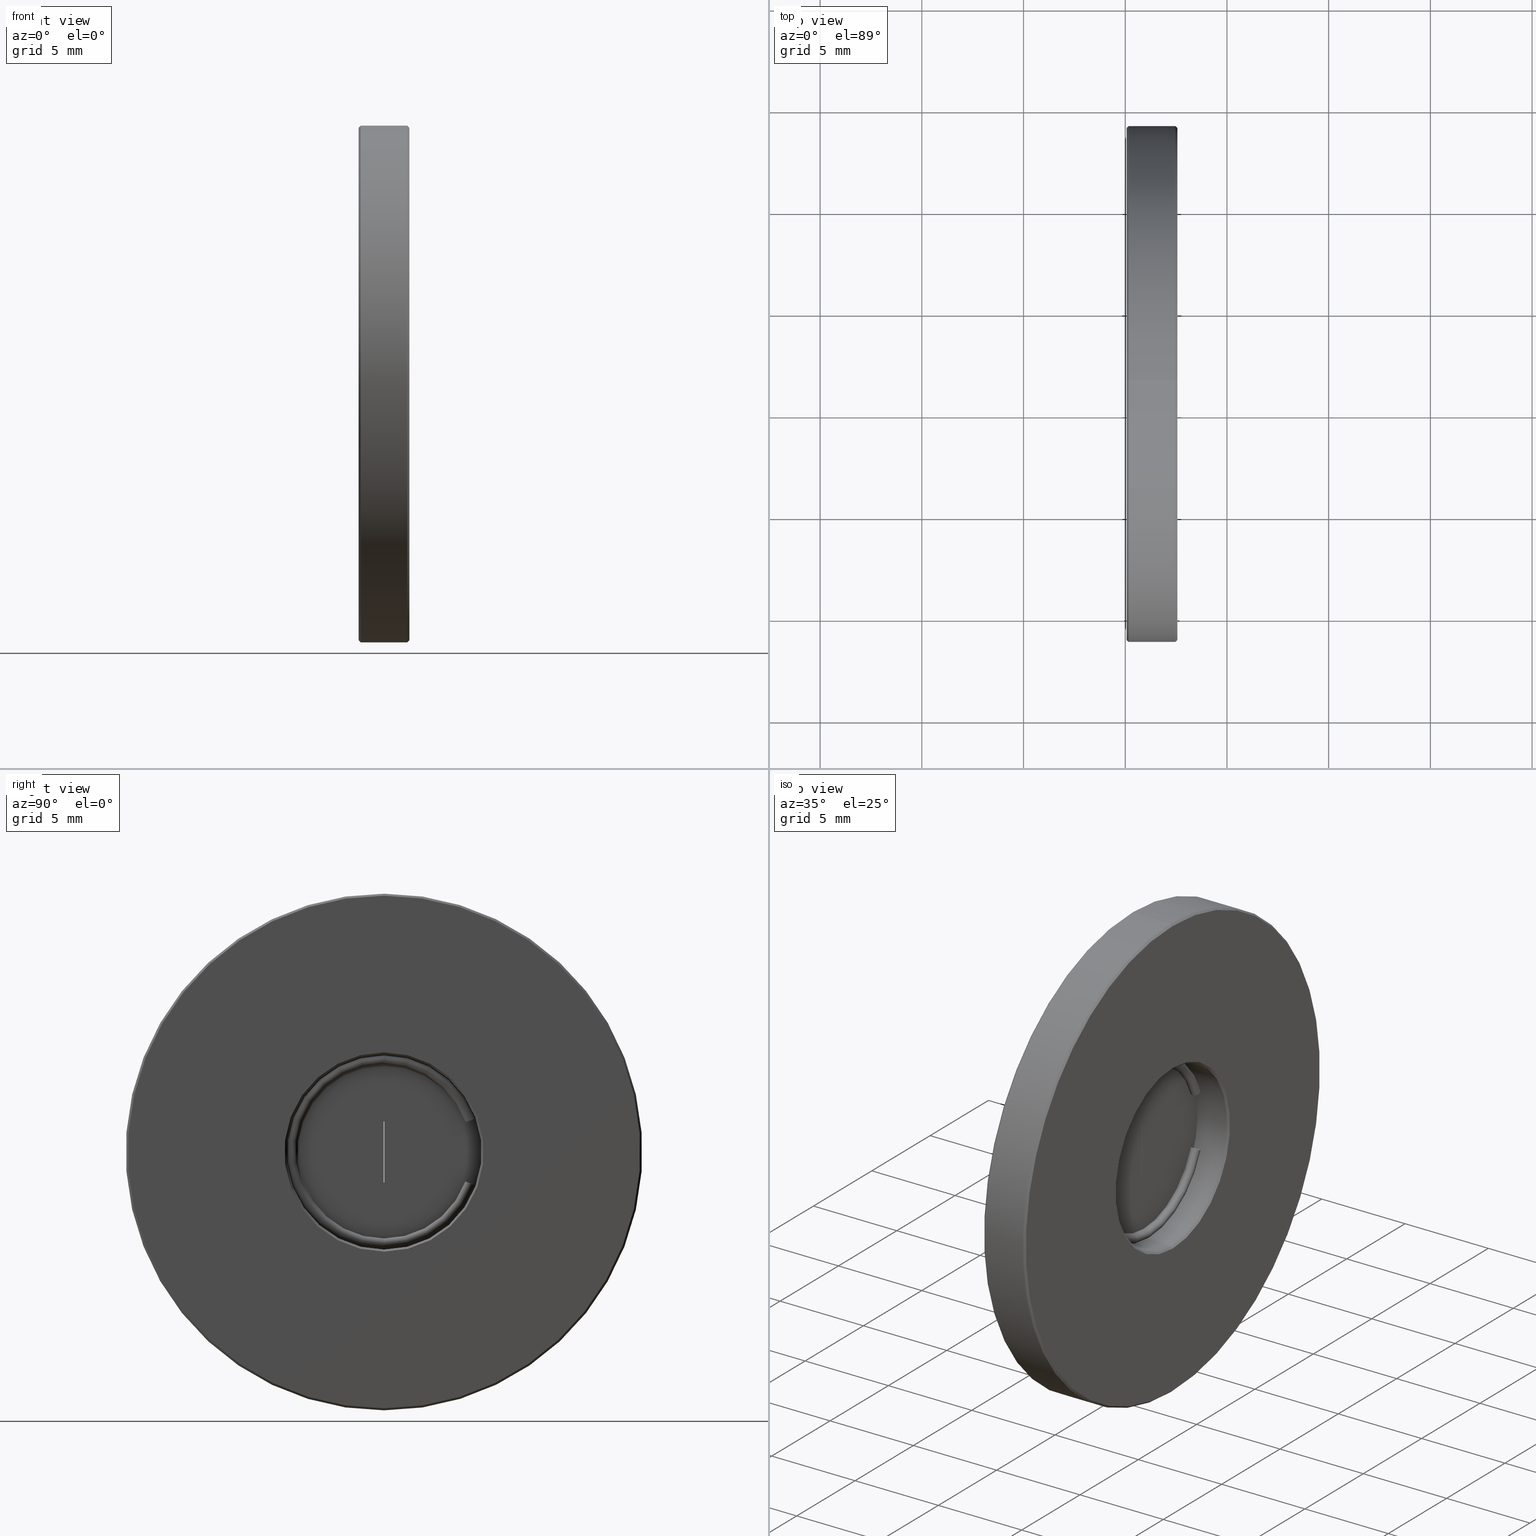
[diagram: canonical four-view strip — front | top / right | iso, engineering-drawing reading convention]
A machine part, canonical four-view strip (front | top / right | iso — engineering-drawing reading convention). The complete STEP part file that produces these views, byte-faithful:
ISO-10303-21;
HEADER;
FILE_DESCRIPTION (( 'STEP AP203' ),
    '1' );
FILE_NAME ('528056.STEP',
    '2023-04-06T08:12:36',
    ( '1337953205@qq.com' ),
    ( '' ),
    'SwSTEP 2.0',
    'SolidWorks 2020',
    '' );
FILE_SCHEMA (( 'CONFIG_CONTROL_DESIGN' ));
ENDSEC;

DATA;
#1 = EDGE_CURVE ( 'NONE', #247, #933, #180, .T. ) ;
#2 = ORIENTED_EDGE ( 'NONE', *, *, #721, .T. ) ;
#3 = ORIENTED_EDGE ( 'NONE', *, *, #604, .T. ) ;
#4 = DIRECTION ( 'NONE',  ( 0.000000000000000000, 0.000000000000000000, -1.000000000000000000 ) ) ;
#5 = DIRECTION ( 'NONE',  ( 3.053113317638805026E-15, 1.000000000000000000, -6.581520653068446578E-11 ) ) ;
#6 = ORIENTED_EDGE ( 'NONE', *, *, #466, .F. ) ;
#7 = DIRECTION ( 'NONE',  ( 1.000000000000000000, 0.000000000000000000, 0.000000000000000000 ) ) ;
#8 = PERSON ( 'δָ��', 'δָ��', 'δָ��', ('δָ��'), ('δָ��'), ('δָ��') ) ;
#9 = DIRECTION ( 'NONE',  ( 0.000000000000000000, 0.000000000000000000, -1.000000000000000000 ) ) ;
#10 = LINE ( 'NONE', #752, #308 ) ;
#11 = CLOSED_SHELL ( 'NONE', ( #220, #214, #435, #58, #460, #622, #64, #884, #144, #823, #866, #584, #171, #537, #527, #666, #551, #632, #916, #354, #47, #921, #393, #372, #557 ) ) ;
#12 = ORIENTED_EDGE ( 'NONE', *, *, #792, .T. ) ;
#13 = FACE_OUTER_BOUND ( 'NONE', #139, .T. ) ;
#14 = EDGE_CURVE ( 'NONE', #619, #373, #75, .T. ) ;
#15 = AXIS2_PLACEMENT_3D ( 'NONE', #702, #183, #931 ) ;
#16 = FACE_OUTER_BOUND ( 'NONE', #185, .T. ) ;
#17 = CC_DESIGN_APPROVAL ( #805, ( #184 ) ) ;
#18 = CYLINDRICAL_SURFACE ( 'NONE', #907, 3.700000000000001954 ) ;
#19 = ORIENTED_EDGE ( 'NONE', *, *, #152, .F. ) ;
#20 = DIRECTION ( 'NONE',  ( 0.000000000000000000, -1.000000000000000000, 0.000000000000000000 ) ) ;
#21 = CARTESIAN_POINT ( 'NONE',  ( -4.934863851252999645, 1.436758841085000071, 25.39999999999999858 ) ) ;
#22 = EDGE_CURVE ( 'NONE', #480, #477, #10, .T. ) ;
#23 = CARTESIAN_POINT ( 'NONE',  ( -2.434863851252999645, 1.436758841085000071, 25.39999999999999858 ) ) ;
#24 = ORIENTED_EDGE ( 'NONE', *, *, #152, .T. ) ;
#25 = DIRECTION ( 'NONE',  ( 0.000000000000000000, -1.000000000000000000, 0.000000000000000000 ) ) ;
#26 = FACE_BOUND ( 'NONE', #870, .T. ) ;
#27 = EDGE_CURVE ( 'NONE', #81, #665, #789, .T. ) ;
#28 = DIRECTION ( 'NONE',  ( 3.104242009642707308E-15, 1.000000000000000000, -6.581577388350236595E-11 ) ) ;
#29 = EDGE_LOOP ( 'NONE', ( #575, #174, #3, #529 ) ) ;
#30 = DIRECTION ( 'NONE',  ( 1.000000000000000000, 0.000000000000000000, 0.000000000000000000 ) ) ;
#31 = CARTESIAN_POINT ( 'NONE',  ( -4.284863851253000178, 1.436758841085000071, 25.39999999999999858 ) ) ;
#32 = AXIS2_PLACEMENT_3D ( 'NONE', #61, #350, #561 ) ;
#33 = VECTOR ( 'NONE', #618, 1000.000000000000114 ) ;
#34 = VECTOR ( 'NONE', #312, 999.9999999999998863 ) ;
#35 = AXIS2_PLACEMENT_3D ( 'NONE', #533, #600, #734 ) ;
#36 = CARTESIAN_POINT ( 'NONE',  ( -2.434863851252999645, 1.436758841085000071, 25.39999999999999858 ) ) ;
#37 = EDGE_CURVE ( 'NONE', #412, #753, #834, .T. ) ;
#38 = VERTEX_POINT ( 'NONE', #520 ) ;
#39 = CALENDAR_DATE ( 2023, 6, 4 ) ;
#40 = DIRECTION ( 'NONE',  ( 0.000000000000000000, 0.000000000000000000, -1.000000000000000000 ) ) ;
#41 = ORIENTED_EDGE ( 'NONE', *, *, #401, .T. ) ;
#42 = DIRECTION ( 'NONE',  ( 0.000000000000000000, 0.000000000000000000, 1.000000000000000000 ) ) ;
#43 = CARTESIAN_POINT ( 'NONE',  ( -2.434863851252999645, 1.436758841085000737, 30.30000000000000071 ) ) ;
#44 = ORIENTED_EDGE ( 'NONE', *, *, #729, .T. ) ;
#45 = COORDINATED_UNIVERSAL_TIME_OFFSET ( 8, 0, .AHEAD. ) ;
#46 = LINE ( 'NONE', #341, #613 ) ;
#47 = ADVANCED_FACE ( 'NONE', ( #539 ), #88, .T. ) ;
#48 = CONICAL_SURFACE ( 'NONE', #818, 4.900000000000001243, 0.7853981633974433940 ) ;
#49 = AXIS2_PLACEMENT_3D ( 'NONE', #175, #98, #455 ) ;
#50 = APPROVAL_PERSON_ORGANIZATION ( #335, #227, #252 ) ;
#51 = EDGE_LOOP ( 'NONE', ( #203, #643 ) ) ;
#52 = FACE_OUTER_BOUND ( 'NONE', #473, .T. ) ;
#53 = CARTESIAN_POINT ( 'NONE',  ( -4.334863851253000000, 1.436758841085000071, 25.39999999999999858 ) ) ;
#54 = CC_DESIGN_DATE_AND_TIME_ASSIGNMENT ( #407, #779, ( #184 ) ) ;
#55 = EDGE_LOOP ( 'NONE', ( #44, #793 ) ) ;
#56 = CARTESIAN_POINT ( 'NONE',  ( -4.034863851253000178, 1.436758841085000071, 25.39999999999999858 ) ) ;
#57 = DIRECTION ( 'NONE',  ( -1.000000000000000000, 0.000000000000000000, 0.000000000000000000 ) ) ;
#58 = ADVANCED_FACE ( 'NONE', ( #173 ), #384, .F. ) ;
#59 = ORIENTED_EDGE ( 'NONE', *, *, #746, .F. ) ;
#60 = DIRECTION ( 'NONE',  ( 0.000000000000000000, 0.000000000000000000, -1.000000000000000000 ) ) ;
#61 = CARTESIAN_POINT ( 'NONE',  ( -4.034863851253000178, 1.436758841085000071, 25.39999999999999858 ) ) ;
#62 = AXIS2_PLACEMENT_3D ( 'NONE', #849, #405, #645 ) ;
#63 = ORIENTED_EDGE ( 'NONE', *, *, #757, .T. ) ;
#64 = ADVANCED_FACE ( 'NONE', ( #463, #885 ), #815, .F. ) ;
#65 = DIRECTION ( 'NONE',  ( 1.000000000000000000, -3.053113317719177725E-15, -1.221245326846538123E-15 ) ) ;
#66 = CARTESIAN_POINT ( 'NONE',  ( -4.034863851253000178, 1.436758841085000071, 25.39999999999999858 ) ) ;
#67 = ORIENTED_EDGE ( 'NONE', *, *, #430, .F. ) ;
#68 = ORIENTED_EDGE ( 'NONE', *, *, #935, .T. ) ;
#69 = PLANE ( 'NONE',  #846 ) ;
#70 = CARTESIAN_POINT ( 'NONE',  ( -4.284863851253000178, 1.436758841085000071, 25.39999999999999858 ) ) ;
#71 = ORIENTED_EDGE ( 'NONE', *, *, #859, .T. ) ;
#72 = PLANE ( 'NONE',  #134 ) ;
#73 = CARTESIAN_POINT ( 'NONE',  ( -4.334863851253000000, 1.421758841084999947, 23.89999999999999858 ) ) ;
#74 = EDGE_CURVE ( 'NONE', #714, #585, #489, .T. ) ;
#75 = LINE ( 'NONE', #571, #242 ) ;
#76 = AXIS2_PLACEMENT_3D ( 'NONE', #70, #212, #83 ) ;
#77 = ORIENTED_EDGE ( 'NONE', *, *, #85, .T. ) ;
#78 = FACE_OUTER_BOUND ( 'NONE', #563, .T. ) ;
#79 = CARTESIAN_POINT ( 'NONE',  ( -18.51131405003469865, 1.436758841085000737, 30.19999999999999929 ) ) ;
#80 = APPLICATION_CONTEXT ( 'configuration controlled 3d designs of mechanical parts and assemblies' ) ;
#81 = VERTEX_POINT ( 'NONE', #315 ) ;
#82 = CARTESIAN_POINT ( 'NONE',  ( -4.334863851253000000, 1.436758841085000071, 25.39999999999999858 ) ) ;
#83 = DIRECTION ( 'NONE',  ( 0.000000000000000000, 1.000000000000000000, 0.000000000000000000 ) ) ;
#84 = LINE ( 'NONE', #102, #135 ) ;
#85 = EDGE_CURVE ( 'NONE', #81, #353, #150, .T. ) ;
#86 = ORIENTED_EDGE ( 'NONE', *, *, #899, .F. ) ;
#87 = FACE_OUTER_BOUND ( 'NONE', #29, .T. ) ;
#88 = PLANE ( 'NONE',  #535 ) ;
#89 = ADVANCED_BREP_SHAPE_REPRESENTATION ( '528056', ( #562, #554, #820 ), #568 ) ;
#90 = AXIS2_PLACEMENT_3D ( 'NONE', #36, #201, #932 ) ;
#91 = VERTEX_POINT ( 'NONE', #821 ) ;
#92 = EDGE_CURVE ( 'NONE', #633, #619, #84, .T. ) ;
#93 = APPROVAL_DATE_TIME ( #328, #805 ) ;
#94 = AXIS2_PLACEMENT_3D ( 'NONE', #56, #573, #418 ) ;
#95 = DIRECTION ( 'NONE',  ( 1.000000000000000000, 0.000000000000000000, 0.000000000000000000 ) ) ;
#96 = VERTEX_POINT ( 'NONE', #228 ) ;
#97 = FACE_OUTER_BOUND ( 'NONE', #594, .T. ) ;
#98 = DIRECTION ( 'NONE',  ( -1.000000000000000000, 0.000000000000000000, 0.000000000000000000 ) ) ;
#99 = EDGE_CURVE ( 'NONE', #851, #412, #524, .T. ) ;
#100 = DIRECTION ( 'NONE',  ( 0.000000000000000000, 0.000000000000000000, -1.000000000000000000 ) ) ;
#101 = CARTESIAN_POINT ( 'NONE',  ( -2.434863851252999645, 1.436758841085000071, 25.39999999999999858 ) ) ;
#102 = CARTESIAN_POINT ( 'NONE',  ( -4.284863851253000178, 1.421758841084999947, 26.89999999999999858 ) ) ;
#103 = ORIENTED_EDGE ( 'NONE', *, *, #295, .F. ) ;
#104 = APPROVAL_STATUS ( 'not_yet_approved' ) ;
#105 = VECTOR ( 'NONE', #781, 999.9999999999998863 ) ;
#106 = AXIS2_PLACEMENT_3D ( 'NONE', #469, #30, #25 ) ;
#107 = ORIENTED_EDGE ( 'NONE', *, *, #74, .F. ) ;
#108 = FACE_OUTER_BOUND ( 'NONE', #258, .T. ) ;
#109 = ORIENTED_EDGE ( 'NONE', *, *, #676, .F. ) ;
#110 = ADVANCED_FACE ( 'NONE', ( #811 ), #545, .T. ) ;
#111 = LINE ( 'NONE', #497, #194 ) ;
#112 = ORIENTED_EDGE ( 'NONE', *, *, #74, .T. ) ;
#113 = APPROVAL_ROLE ( '' ) ;
#114 = EDGE_CURVE ( 'NONE', #588, #856, #243, .T. ) ;
#115 = DIRECTION ( 'NONE',  ( 1.000000000000000000, 0.000000000000000000, 0.000000000000000000 ) ) ;
#116 = TOROIDAL_SURFACE ( 'NONE', #32, 4.500000000000000000, 0.2500000000000000000 ) ;
#117 = DIRECTION ( 'NONE',  ( -1.000000000000000000, 0.000000000000000000, 0.000000000000000000 ) ) ;
#118 = CONICAL_SURFACE ( 'NONE', #787, 3.800000000000001155, 0.7853981633974433940 ) ;
#119 = ORIENTED_EDGE ( 'NONE', *, *, #596, .T. ) ;
#120 = CARTESIAN_POINT ( 'NONE',  ( -4.034863851252985967, 5.430452479520808673, 26.85358560887116042 ) ) ;
#121 = EDGE_CURVE ( 'NONE', #433, #801, #379, .T. ) ;
#122 = ORIENTED_EDGE ( 'NONE', *, *, #935, .F. ) ;
#123 = PERSON_AND_ORGANIZATION_ROLE ( 'creator' ) ;
#124 = DIRECTION ( 'NONE',  ( -1.000000000000000000, 0.000000000000000000, 0.000000000000000000 ) ) ;
#125 = DIRECTION ( 'NONE',  ( 0.000000000000000000, 0.000000000000000000, -1.000000000000000000 ) ) ;
#126 = VERTEX_POINT ( 'NONE', #232 ) ;
#127 = PERSON_AND_ORGANIZATION_ROLE ( 'classification_officer' ) ;
#128 = DIRECTION ( 'NONE',  ( -1.000000000000000000, 0.000000000000000000, 0.000000000000000000 ) ) ;
#129 = CARTESIAN_POINT ( 'NONE',  ( -4.284863851253000178, 6.186758841085000071, 25.39999999999999858 ) ) ;
#130 = AXIS2_PLACEMENT_3D ( 'NONE', #674, #677, #826 ) ;
#131 = AXIS2_PLACEMENT_3D ( 'NONE', #346, #920, #915 ) ;
#132 = AXIS2_PLACEMENT_3D ( 'NONE', #540, #689, #828 ) ;
#133 = ORIENTED_EDGE ( 'NONE', *, *, #314, .F. ) ;
#134 = AXIS2_PLACEMENT_3D ( 'NONE', #446, #595, #307 ) ;
#135 = VECTOR ( 'NONE', #100, 1000.000000000000000 ) ;
#136 = DIRECTION ( 'NONE',  ( 1.000000000000000000, 0.000000000000000000, 0.000000000000000000 ) ) ;
#137 = CARTESIAN_POINT ( 'NONE',  ( -4.834863851252999112, 1.436758841085000071, 25.39999999999999858 ) ) ;
#138 = ORIENTED_EDGE ( 'NONE', *, *, #494, .F. ) ;
#139 = EDGE_LOOP ( 'NONE', ( #291, #796, #109, #402 ) ) ;
#140 = DIRECTION ( 'NONE',  ( 1.000000000000000000, 7.239954656432090073E-27, 1.100029575852693904E-16 ) ) ;
#141 = CARTESIAN_POINT ( 'NONE',  ( -4.834863851252998224, 1.436758841085000071, 25.39999999999999858 ) ) ;
#142 = CARTESIAN_POINT ( 'NONE',  ( -4.034863851253000178, 1.436758841085000071, 25.39999999999999858 ) ) ;
#143 = LINE ( 'NONE', #292, #179 ) ;
#144 = ADVANCED_FACE ( 'NONE', ( #671 ), #18, .F. ) ;
#145 = CARTESIAN_POINT ( 'NONE',  ( -4.284863851253000178, 1.451758841084999974, 26.89999999999999858 ) ) ;
#146 = DESIGN_CONTEXT ( 'detailed design', #80, 'design' ) ;
#147 = VERTEX_POINT ( 'NONE', #593 ) ;
#148 = AXIS2_PLACEMENT_3D ( 'NONE', #156, #5, #451 ) ;
#149 = CC_DESIGN_SECURITY_CLASSIFICATION ( #324, ( #290 ) ) ;
#150 = CIRCLE ( 'NONE', #428, 4.750000000000000000 ) ;
#151 = DIRECTION ( 'NONE',  ( -1.221245327047478942E-15, -6.581508912423552347E-11, -1.000000000000000000 ) ) ;
#152 = EDGE_CURVE ( 'NONE', #585, #714, #425, .T. ) ;
#153 = LINE ( 'NONE', #457, #105 ) ;
#154 = ORIENTED_EDGE ( 'NONE', *, *, #733, .T. ) ;
#155 = CARTESIAN_POINT ( 'NONE',  ( -2.534863851253000178, 1.436758841085000071, 25.39999999999999858 ) ) ;
#156 = CARTESIAN_POINT ( 'NONE',  ( -4.034863851253005507, 1.436758841381168494, 29.89999999999999858 ) ) ;
#157 = EDGE_CURVE ( 'NONE', #433, #147, #153, .T. ) ;
#158 = CARTESIAN_POINT ( 'NONE',  ( -4.284863851253000178, 1.451758841084999974, 26.89999999999999858 ) ) ;
#159 = ORIENTED_EDGE ( 'NONE', *, *, #688, .T. ) ;
#160 = PLANE ( 'NONE',  #444 ) ;
#161 = PLANE ( 'NONE',  #877 ) ;
#162 = DIRECTION ( 'NONE',  ( 0.000000000000000000, 0.000000000000000000, -1.000000000000000000 ) ) ;
#163 = CONICAL_SURFACE ( 'NONE', #90, 12.59999999999999964, 0.7853981633974568277 ) ;
#164 =( NAMED_UNIT ( * ) SI_UNIT ( $, .STERADIAN. ) SOLID_ANGLE_UNIT ( ) );
#165 = CIRCLE ( 'NONE', #819, 3.800000000000001155 ) ;
#166 = CIRCLE ( 'NONE', #399, 4.799999999999998934 ) ;
#167 = FACE_OUTER_BOUND ( 'NONE', #730, .T. ) ;
#168 = DIRECTION ( 'NONE',  ( 0.000000000000000000, -1.000000000000000000, 0.000000000000000000 ) ) ;
#169 = ORIENTED_EDGE ( 'NONE', *, *, #441, .T. ) ;
#170 = APPLICATION_PROTOCOL_DEFINITION ( 'international standard', 'config_control_design', 1994, #80 ) ;
#171 = ADVANCED_FACE ( 'NONE', ( #627 ), #411, .F. ) ;
#172 = LINE ( 'NONE', #750, #33 ) ;
#173 = FACE_OUTER_BOUND ( 'NONE', #615, .T. ) ;
#174 = ORIENTED_EDGE ( 'NONE', *, *, #854, .T. ) ;
#175 = CARTESIAN_POINT ( 'NONE',  ( -4.934863851252999645, 1.436758841085000071, 25.39999999999999858 ) ) ;
#176 = ORIENTED_EDGE ( 'NONE', *, *, #829, .T. ) ;
#177 = CARTESIAN_POINT ( 'NONE',  ( -4.284863851253000178, 1.451758841084999974, 23.89999999999999858 ) ) ;
#178 = VECTOR ( 'NONE', #222, 1000.000000000000000 ) ;
#179 = VECTOR ( 'NONE', #7, 1000.000000000000000 ) ;
#180 = CIRCLE ( 'NONE', #712, 4.250000000000000000 ) ;
#181 = EDGE_CURVE ( 'NONE', #91, #546, #503, .T. ) ;
#182 = VERTEX_POINT ( 'NONE', #774 ) ;
#183 = DIRECTION ( 'NONE',  ( 1.000000000000000000, 0.000000000000000000, 0.000000000000000000 ) ) ;
#184 = PRODUCT_DEFINITION ( 'δ֪', '', #290, #146 ) ;
#185 = EDGE_LOOP ( 'NONE', ( #704, #357, #770, #213 ) ) ;
#186 = CALENDAR_DATE ( 2023, 6, 4 ) ;
#187 = CARTESIAN_POINT ( 'NONE',  ( -4.334863851253000000, 1.436758841085000071, 25.39999999999999858 ) ) ;
#188 = DIRECTION ( 'NONE',  ( 1.000000000000000000, 0.000000000000000000, 0.000000000000000000 ) ) ;
#189 = ORIENTED_EDGE ( 'NONE', *, *, #466, .T. ) ;
#190 = EDGE_CURVE ( 'NONE', #126, #886, #493, .T. ) ;
#191 = LINE ( 'NONE', #699, #640 ) ;
#192 = AXIS2_PLACEMENT_3D ( 'NONE', #874, #95, #807 ) ;
#193 = DIRECTION ( 'NONE',  ( 3.053113317638805026E-15, 1.000000000000000000, -6.581520653068446578E-11 ) ) ;
#194 = VECTOR ( 'NONE', #408, 1000.000000000000000 ) ;
#195 = VECTOR ( 'NONE', #887, 1000.000000000000000 ) ;
#196 = ORIENTED_EDGE ( 'NONE', *, *, #441, .F. ) ;
#197 = CARTESIAN_POINT ( 'NONE',  ( -2.434863851252999645, 1.436758841085000071, 38.00000000000000000 ) ) ;
#198 = DIRECTION ( 'NONE',  ( 3.104242009642707308E-15, 1.000000000000000000, -6.581577388350236595E-11 ) ) ;
#199 = ORIENTED_EDGE ( 'NONE', *, *, #930, .T. ) ;
#200 = DIRECTION ( 'NONE',  ( 3.104242009642707308E-15, 1.000000000000000000, -6.581577388350236595E-11 ) ) ;
#201 = DIRECTION ( 'NONE',  ( -1.000000000000000000, 0.000000000000000000, 0.000000000000000000 ) ) ;
#202 = ORIENTED_EDGE ( 'NONE', *, *, #604, .F. ) ;
#203 = ORIENTED_EDGE ( 'NONE', *, *, #792, .F. ) ;
#204 = DIRECTION ( 'NONE',  ( -1.000000000000000000, 0.000000000000000000, 0.000000000000000000 ) ) ;
#205 = CARTESIAN_POINT ( 'NONE',  ( -4.334863851253000000, 1.451758841084999974, 23.89999999999999858 ) ) ;
#206 = AXIS2_PLACEMENT_3D ( 'NONE', #526, #814, #668 ) ;
#207 = CIRCLE ( 'NONE', #289, 12.69999999999999929 ) ;
#208 = EDGE_CURVE ( 'NONE', #933, #665, #580, .T. ) ;
#209 = ORIENTED_EDGE ( 'NONE', *, *, #842, .T. ) ;
#210 = EDGE_LOOP ( 'NONE', ( #459, #284, #176, #749 ) ) ;
#211 = DIRECTION ( 'NONE',  ( 0.000000000000000000, 0.000000000000000000, -1.000000000000000000 ) ) ;
#212 = DIRECTION ( 'NONE',  ( -1.000000000000000000, 0.000000000000000000, 0.000000000000000000 ) ) ;
#213 = ORIENTED_EDGE ( 'NONE', *, *, #871, .T. ) ;
#214 = ADVANCED_FACE ( 'NONE', ( #703 ), #894, .T. ) ;
#215 = ORIENTED_EDGE ( 'NONE', *, *, #628, .T. ) ;
#216 = DIRECTION ( 'NONE',  ( 3.469446951953611033E-15, -0.9396926207634005435, 0.3420201433875083574 ) ) ;
#217 = FACE_OUTER_BOUND ( 'NONE', #678, .T. ) ;
#218 = ORIENTED_EDGE ( 'NONE', *, *, #208, .T. ) ;
#219 = CYLINDRICAL_SURFACE ( 'NONE', #351, 3.700000000000001954 ) ;
#220 = ADVANCED_FACE ( 'NONE', ( #642 ), #163, .T. ) ;
#221 = DIRECTION ( 'NONE',  ( 0.000000000000000000, -1.000000000000000000, 0.000000000000000000 ) ) ;
#222 = DIRECTION ( 'NONE',  ( 0.7071067811865415775, 0.000000000000000000, -0.7071067811865535679 ) ) ;
#223 = VECTOR ( 'NONE', #221, 1000.000000000000000 ) ;
#224 = AXIS2_PLACEMENT_3D ( 'NONE', #249, #673, #253 ) ;
#225 = DIRECTION ( 'NONE',  ( 1.000000000000000000, 0.000000000000000000, 0.000000000000000000 ) ) ;
#226 = FACE_BOUND ( 'NONE', #352, .T. ) ;
#227 = APPROVAL ( #259, 'δָ��' ) ;
#228 = CARTESIAN_POINT ( 'NONE',  ( -2.534863851253000178, 1.436758841085000071, 20.60000000000000142 ) ) ;
#229 = ORIENTED_EDGE ( 'NONE', *, *, #715, .T. ) ;
#230 = PERSON_AND_ORGANIZATION_ROLE ( 'design_owner' ) ;
#231 = DIRECTION ( 'NONE',  ( 0.000000000000000000, 0.000000000000000000, -1.000000000000000000 ) ) ;
#232 = CARTESIAN_POINT ( 'NONE',  ( -4.284863851253000178, 1.451758841084999974, 26.89999999999999858 ) ) ;
#233 = ORIENTED_EDGE ( 'NONE', *, *, #27, .F. ) ;
#234 =( LENGTH_UNIT ( ) NAMED_UNIT ( * ) SI_UNIT ( .MILLI., .METRE. ) );
#235 = CARTESIAN_POINT ( 'NONE',  ( -4.284863851253000178, 1.421758841084999947, 23.89999999999999858 ) ) ;
#236 = DIRECTION ( 'NONE',  ( -1.000000000000000000, 0.000000000000000000, 0.000000000000000000 ) ) ;
#237 = EDGE_CURVE ( 'NONE', #546, #933, #254, .T. ) ;
#238 = CIRCLE ( 'NONE', #769, 4.750000000000000000 ) ;
#239 = EDGE_LOOP ( 'NONE', ( #783, #610, #321, #278 ) ) ;
#240 = CARTESIAN_POINT ( 'NONE',  ( -4.034863851252997513, 1.436758841364714767, 29.64999999999999858 ) ) ;
#241 = CIRCLE ( 'NONE', #257, 4.750000000000000000 ) ;
#242 = VECTOR ( 'NONE', #664, 1000.000000000000000 ) ;
#243 = LINE ( 'NONE', #738, #178 ) ;
#244 = ORIENTED_EDGE ( 'NONE', *, *, #250, .F. ) ;
#245 = PRODUCT_RELATED_PRODUCT_CATEGORY ( 'detail', '', ( #556 ) ) ;
#246 = FACE_OUTER_BOUND ( 'NONE', #541, .T. ) ;
#247 = VERTEX_POINT ( 'NONE', #120 ) ;
#248 = DIRECTION ( 'NONE',  ( -1.221245327047478942E-15, -6.581508912423552347E-11, -1.000000000000000000 ) ) ;
#249 = CARTESIAN_POINT ( 'NONE',  ( -4.034863851252994849, 1.436758840788832314, 20.89999999999999858 ) ) ;
#250 = EDGE_CURVE ( 'NONE', #311, #753, #555, .T. ) ;
#251 = VERTEX_POINT ( 'NONE', #924 ) ;
#252 = APPROVAL_ROLE ( '' ) ;
#253 = DIRECTION ( 'NONE',  ( 1.000000000000000000, -3.469446951953611033E-15, 0.000000000000000000 ) ) ;
#254 = CIRCLE ( 'NONE', #612, 0.2500000000000002220 ) ;
#255 = AXIS2_PLACEMENT_3D ( 'NONE', #325, #476, #392 ) ;
#256 = EDGE_CURVE ( 'NONE', #251, #856, #669, .T. ) ;
#257 = AXIS2_PLACEMENT_3D ( 'NONE', #872, #377, #509 ) ;
#258 = EDGE_LOOP ( 'NONE', ( #590, #63, #154, #202 ) ) ;
#259 = APPROVAL_STATUS ( 'not_yet_approved' ) ;
#260 = FACE_BOUND ( 'NONE', #396, .T. ) ;
#261 = DIRECTION ( 'NONE',  ( 1.000000000000000000, -3.053113317719177725E-15, -1.221245326846538123E-15 ) ) ;
#262 = EDGE_CURVE ( 'NONE', #660, #801, #320, .T. ) ;
#263 = ORIENTED_EDGE ( 'NONE', *, *, #114, .T. ) ;
#264 = COORDINATED_UNIVERSAL_TIME_OFFSET ( 8, 0, .AHEAD. ) ;
#265 = CARTESIAN_POINT ( 'NONE',  ( -4.334863851253000000, 1.421758841084999947, 26.89999999999999858 ) ) ;
#266 = DIRECTION ( 'NONE',  ( 0.000000000000000000, 0.000000000000000000, -1.000000000000000000 ) ) ;
#267 = ORIENTED_EDGE ( 'NONE', *, *, #692, .F. ) ;
#268 = APPROVAL_STATUS ( 'not_yet_approved' ) ;
#269 = CC_DESIGN_PERSON_AND_ORGANIZATION_ASSIGNMENT ( #928, #836, ( #290 ) ) ;
#270 = DIRECTION ( 'NONE',  ( 0.000000000000000000, 0.000000000000000000, -1.000000000000000000 ) ) ;
#271 = AXIS2_PLACEMENT_3D ( 'NONE', #592, #447, #940 ) ;
#272 = CARTESIAN_POINT ( 'NONE',  ( -4.334863851253000000, 1.451758841084999974, 23.89999999999999858 ) ) ;
#273 = CONICAL_SURFACE ( 'NONE', #62, 12.69999999999999929, 0.7853981633974568277 ) ;
#274 = AXIS2_PLACEMENT_3D ( 'NONE', #876, #225, #809 ) ;
#275 = VERTEX_POINT ( 'NONE', #205 ) ;
#276 = DIRECTION ( 'NONE',  ( 1.000000000000000000, 0.000000000000000000, 0.000000000000000000 ) ) ;
#277 = CARTESIAN_POINT ( 'NONE',  ( -4.334863851253000000, 1.451758841084999974, 26.89999999999999858 ) ) ;
#278 = ORIENTED_EDGE ( 'NONE', *, *, #359, .T. ) ;
#279 = ORIENTED_EDGE ( 'NONE', *, *, #37, .T. ) ;
#280 = DIRECTION ( 'NONE',  ( 0.000000000000000000, 0.000000000000000000, -1.000000000000000000 ) ) ;
#281 = DIRECTION ( 'NONE',  ( -1.000000000000000000, 0.000000000000000000, 0.000000000000000000 ) ) ;
#282 = EDGE_CURVE ( 'NONE', #585, #438, #414, .T. ) ;
#283 = EDGE_LOOP ( 'NONE', ( #822, #701, #800, #12 ) ) ;
#284 = ORIENTED_EDGE ( 'NONE', *, *, #343, .T. ) ;
#285 = DIRECTION ( 'NONE',  ( 1.033689675075033786E-16, 0.3420201432638105277, -0.9396926208084229737 ) ) ;
#286 = CARTESIAN_POINT ( 'NONE',  ( -4.334863851253000000, 1.436758841085000071, 20.60000000000000142 ) ) ;
#287 = AXIS2_PLACEMENT_3D ( 'NONE', #53, #844, #646 ) ;
#288 = EDGE_CURVE ( 'NONE', #433, #835, #802, .T. ) ;
#289 = AXIS2_PLACEMENT_3D ( 'NONE', #706, #115, #577 ) ;
#290 = PRODUCT_DEFINITION_FORMATION_WITH_SPECIFIED_SOURCE ( '�κ�', '', #556, .NOT_KNOWN. ) ;
#291 = ORIENTED_EDGE ( 'NONE', *, *, #288, .T. ) ;
#292 = CARTESIAN_POINT ( 'NONE',  ( -18.51131405003469865, 1.436758841085000071, 20.60000000000000142 ) ) ;
#293 = CARTESIAN_POINT ( 'NONE',  ( -4.034863851252988631, 5.900298789711156289, 23.77540431890931671 ) ) ;
#294 = ORIENTED_EDGE ( 'NONE', *, *, #181, .T. ) ;
#295 = EDGE_CURVE ( 'NONE', #406, #275, #700, .T. ) ;
#296 = CARTESIAN_POINT ( 'NONE',  ( -4.834863851252998224, 1.436758841085000515, 29.10000000000000142 ) ) ;
#297 = DIRECTION ( 'NONE',  ( 1.000000000000000000, 0.000000000000000000, 0.000000000000000000 ) ) ;
#298 = DIRECTION ( 'NONE',  ( 0.000000000000000000, 0.000000000000000000, -1.000000000000000000 ) ) ;
#299 = ORIENTED_EDGE ( 'NONE', *, *, #282, .F. ) ;
#300 = CC_DESIGN_PERSON_AND_ORGANIZATION_ASSIGNMENT ( #709, #127, ( #324 ) ) ;
#301 = CARTESIAN_POINT ( 'NONE',  ( -4.034863851253018829, 5.665375634520317227, 23.86090935475618835 ) ) ;
#302 = DIRECTION ( 'NONE',  ( 0.000000000000000000, 0.000000000000000000, -1.000000000000000000 ) ) ;
#303 = DIRECTION ( 'NONE',  ( 0.7071067811865505703, 8.659560562354882322E-17, 0.7071067811865444641 ) ) ;
#304 = VECTOR ( 'NONE', #609, 1000.000000000000000 ) ;
#305 = AXIS2_PLACEMENT_3D ( 'NONE', #370, #434, #374 ) ;
#306 = ORIENTED_EDGE ( 'NONE', *, *, #453, .F. ) ;
#307 = DIRECTION ( 'NONE',  ( 0.000000000000000000, 1.000000000000000000, 0.000000000000000000 ) ) ;
#308 = VECTOR ( 'NONE', #303, 1000.000000000000114 ) ;
#309 = DIRECTION ( 'NONE',  ( 1.000000000000000000, -3.053113317719177725E-15, -1.221245326846538123E-15 ) ) ;
#310 = CARTESIAN_POINT ( 'NONE',  ( -4.034863851252994849, 1.436758840788832314, 20.89999999999999858 ) ) ;
#311 = VERTEX_POINT ( 'NONE', #858 ) ;
#312 = DIRECTION ( 'NONE',  ( -0.7071067811865510144, 0.000000000000000000, 0.7071067811865441310 ) ) ;
#313 = CYLINDRICAL_SURFACE ( 'NONE', #426, 4.750000000000000000 ) ;
#314 = EDGE_CURVE ( 'NONE', #477, #182, #623, .T. ) ;
#315 = CARTESIAN_POINT ( 'NONE',  ( -4.034863851253006395, 1.436758840772378365, 20.64999999999999858 ) ) ;
#316 = PERSON_AND_ORGANIZATION ( #8, #641 ) ;
#317 = FACE_OUTER_BOUND ( 'NONE', #791, .T. ) ;
#318 = ADVANCED_FACE ( 'NONE', ( #707 ), #116, .T. ) ;
#319 = CARTESIAN_POINT ( 'NONE',  ( -4.934863851252999645, 1.436758841085000071, 25.39999999999999858 ) ) ;
#320 = CIRCLE ( 'NONE', #845, 3.700000000000001954 ) ;
#321 = ORIENTED_EDGE ( 'NONE', *, *, #1, .T. ) ;
#322 = DIRECTION ( 'NONE',  ( 0.000000000000000000, 0.000000000000000000, 1.000000000000000000 ) ) ;
#323 = AXIS2_PLACEMENT_3D ( 'NONE', #301, #867, #716 ) ;
#324 = SECURITY_CLASSIFICATION ( '', '', #496 ) ;
#325 = CARTESIAN_POINT ( 'NONE',  ( -4.034863851253000178, 1.436758841085000071, 25.39999999999999858 ) ) ;
#326 = DIRECTION ( 'NONE',  ( 0.000000000000000000, 0.000000000000000000, 1.000000000000000000 ) ) ;
#327 = ORIENTED_EDGE ( 'NONE', *, *, #262, .F. ) ;
#328 = DATE_AND_TIME ( #39, #759 ) ;
#329 = EDGE_CURVE ( 'NONE', #358, #454, #395, .T. ) ;
#330 = DIRECTION ( 'NONE',  ( 0.000000000000000000, 0.000000000000000000, 1.000000000000000000 ) ) ;
#331 = EDGE_LOOP ( 'NONE', ( #485, #512 ) ) ;
#332 = CALENDAR_DATE ( 2023, 6, 4 ) ;
#333 = EDGE_CURVE ( 'NONE', #275, #886, #505, .T. ) ;
#334 = EDGE_LOOP ( 'NONE', ( #690, #294, #382, #423 ) ) ;
#335 = PERSON_AND_ORGANIZATION ( #8, #641 ) ;
#336 = AXIS2_PLACEMENT_3D ( 'NONE', #378, #309, #151 ) ;
#337 = CARTESIAN_POINT ( 'NONE',  ( -4.034863851253000178, 1.436758841085000071, 25.39999999999999858 ) ) ;
#338 = VECTOR ( 'NONE', #780, 1000.000000000000000 ) ;
#339 = ORIENTED_EDGE ( 'NONE', *, *, #661, .F. ) ;
#340 = PERSON_AND_ORGANIZATION_ROLE ( 'creator' ) ;
#341 = CARTESIAN_POINT ( 'NONE',  ( -4.834863851252999112, 1.436758841085001626, 38.09999999999999432 ) ) ;
#342 = DIRECTION ( 'NONE',  ( 0.000000000000000000, 0.000000000000000000, -1.000000000000000000 ) ) ;
#343 = EDGE_CURVE ( 'NONE', #454, #480, #574, .T. ) ;
#344 = EDGE_LOOP ( 'NONE', ( #122, #445, #657, #215 ) ) ;
#345 = DIRECTION ( 'NONE',  ( 1.000000000000000000, 0.000000000000000000, 0.000000000000000000 ) ) ;
#346 = CARTESIAN_POINT ( 'NONE',  ( -18.51131405003469865, 1.436758841085000071, 25.39999999999999858 ) ) ;
#347 = ORIENTED_EDGE ( 'NONE', *, *, #676, .T. ) ;
#348 = CARTESIAN_POINT ( 'NONE',  ( -4.334863851253000000, 6.186758841085000071, 25.39999999999999858 ) ) ;
#349 = AXIS2_PLACEMENT_3D ( 'NONE', #890, #897, #452 ) ;
#350 = DIRECTION ( 'NONE',  ( 1.000000000000000000, -3.053113317719177725E-15, -1.221245326846538123E-15 ) ) ;
#351 = AXIS2_PLACEMENT_3D ( 'NONE', #516, #736, #662 ) ;
#352 = EDGE_LOOP ( 'NONE', ( #552, #675, #432, #855 ) ) ;
#353 = VERTEX_POINT ( 'NONE', #293 ) ;
#354 = ADVANCED_FACE ( 'NONE', ( #440 ), #659, .T. ) ;
#355 = FACE_OUTER_BOUND ( 'NONE', #938, .T. ) ;
#356 = DIRECTION ( 'NONE',  ( 1.000000000000000000, 0.000000000000000000, 0.000000000000000000 ) ) ;
#357 = ORIENTED_EDGE ( 'NONE', *, *, #329, .F. ) ;
#358 = VERTEX_POINT ( 'NONE', #286 ) ;
#359 = EDGE_CURVE ( 'NONE', #933, #546, #564, .T. ) ;
#360 = LINE ( 'NONE', #649, #456 ) ;
#361 = ORIENTED_EDGE ( 'NONE', *, *, #829, .F. ) ;
#362 = ORIENTED_EDGE ( 'NONE', *, *, #256, .F. ) ;
#363 = CARTESIAN_POINT ( 'NONE',  ( -4.834863851252999112, 1.436758841085001626, 12.69999999999999929 ) ) ;
#364 = CARTESIAN_POINT ( 'NONE',  ( -4.284863851253000178, 1.451758841084999974, 23.89999999999999858 ) ) ;
#365 = AXIS2_PLACEMENT_3D ( 'NONE', #137, #356, #342 ) ;
#366 = VECTOR ( 'NONE', #560, 1000.000000000000000 ) ;
#367 = CIRCLE ( 'NONE', #274, 4.799999999999998934 ) ;
#368 = AXIS2_PLACEMENT_3D ( 'NONE', #319, #376, #386 ) ;
#369 = EDGE_LOOP ( 'NONE', ( #103, #67, #917, #684 ) ) ;
#370 = CARTESIAN_POINT ( 'NONE',  ( -4.034863851253018829, 5.665375634520317227, 23.86090935475618835 ) ) ;
#371 = DIRECTION ( 'NONE',  ( 0.000000000000000000, 0.000000000000000000, -1.000000000000000000 ) ) ;
#372 = ADVANCED_FACE ( 'NONE', ( #226, #804 ), #161, .T. ) ;
#373 = VERTEX_POINT ( 'NONE', #364 ) ;
#374 = DIRECTION ( 'NONE',  ( 0.000000000000000000, -0.9396926207634013206, 0.3420201433875062480 ) ) ;
#375 = CARTESIAN_POINT ( 'NONE',  ( -2.434863851252999645, 1.436758841085000071, 25.39999999999999858 ) ) ;
#376 = DIRECTION ( 'NONE',  ( -1.000000000000000000, 0.000000000000000000, 0.000000000000000000 ) ) ;
#377 = DIRECTION ( 'NONE',  ( 1.000000000000000000, 0.000000000000000000, 0.000000000000000000 ) ) ;
#378 = CARTESIAN_POINT ( 'NONE',  ( -4.034863851253000178, 1.436758841085000071, 25.39999999999999858 ) ) ;
#379 = LINE ( 'NONE', #394, #304 ) ;
#380 = CIRCLE ( 'NONE', #49, 12.59999999999999964 ) ;
#381 = VECTOR ( 'NONE', #888, 1000.000000000000000 ) ;
#382 = ORIENTED_EDGE ( 'NONE', *, *, #237, .T. ) ;
#383 = DIRECTION ( 'NONE',  ( 1.000000000000000000, -3.053113317719177725E-15, -1.221245326846538123E-15 ) ) ;
#384 = CONICAL_SURFACE ( 'NONE', #368, 3.800000000000001155, 0.7853981633974433940 ) ;
#385 = FACE_OUTER_BOUND ( 'NONE', #696, .T. ) ;
#386 = DIRECTION ( 'NONE',  ( 0.000000000000000000, 0.000000000000000000, 1.000000000000000000 ) ) ;
#387 = DIRECTION ( 'NONE',  ( 1.000000000000000000, 0.000000000000000000, 0.000000000000000000 ) ) ;
#388 = CARTESIAN_POINT ( 'NONE',  ( -2.534863851253000178, 1.436758841085000071, 25.39999999999999858 ) ) ;
#389 = ADVANCED_FACE ( 'NONE', ( #597 ), #742, .T. ) ;
#390 = DIRECTION ( 'NONE',  ( -3.053113317638805026E-15, -1.000000000000000000, 6.581508406600454517E-11 ) ) ;
#391 = ORIENTED_EDGE ( 'NONE', *, *, #871, .F. ) ;
#392 = DIRECTION ( 'NONE',  ( -1.221245327047478942E-15, -6.581508912423552347E-11, -1.000000000000000000 ) ) ;
#393 = ADVANCED_FACE ( 'NONE', ( #217 ), #436, .T. ) ;
#394 = CARTESIAN_POINT ( 'NONE',  ( -4.934863851252999645, 1.436758841085000071, 21.69999999999999574 ) ) ;
#395 = CIRCLE ( 'NONE', #287, 4.799999999999998934 ) ;
#396 = EDGE_LOOP ( 'NONE', ( #579, #629, #68, #169 ) ) ;
#397 = CARTESIAN_POINT ( 'NONE',  ( -4.284863851253000178, 1.421758841084999947, 26.89999999999999858 ) ) ;
#398 = AXIS2_PLACEMENT_3D ( 'NONE', #510, #864, #795 ) ;
#399 = AXIS2_PLACEMENT_3D ( 'NONE', #731, #136, #863 ) ;
#400 = CARTESIAN_POINT ( 'NONE',  ( -4.034863851252993960, 1.436758841397622444, 30.14999999999999858 ) ) ;
#401 = EDGE_CURVE ( 'NONE', #835, #433, #653, .T. ) ;
#402 = ORIENTED_EDGE ( 'NONE', *, *, #121, .F. ) ;
#403 = CYLINDRICAL_SURFACE ( 'NONE', #132, 12.69999999999999574 ) ;
#404 = ORIENTED_EDGE ( 'NONE', *, *, #596, .F. ) ;
#405 = DIRECTION ( 'NONE',  ( 1.000000000000000000, 0.000000000000000000, 0.000000000000000000 ) ) ;
#406 = VERTEX_POINT ( 'NONE', #73 ) ;
#407 = DATE_AND_TIME ( #547, #806 ) ;
#408 = DIRECTION ( 'NONE',  ( -1.000000000000000000, 0.000000000000000000, 0.000000000000000000 ) ) ;
#409 = CIRCLE ( 'NONE', #944, 0.2500000000000002220 ) ;
#410 = EDGE_CURVE ( 'NONE', #91, #247, #861, .T. ) ;
#411 = CYLINDRICAL_SURFACE ( 'NONE', #131, 4.799999999999998934 ) ;
#412 = VERTEX_POINT ( 'NONE', #517 ) ;
#413 = PLANE ( 'NONE',  #785 ) ;
#414 = LINE ( 'NONE', #631, #472 ) ;
#415 = CC_DESIGN_DATE_AND_TIME_ASSIGNMENT ( #559, #691, ( #324 ) ) ;
#416 = EDGE_LOOP ( 'NONE', ( #922, #658, #6, #901 ) ) ;
#417 = COORDINATED_UNIVERSAL_TIME_OFFSET ( 8, 0, .AHEAD. ) ;
#418 = DIRECTION ( 'NONE',  ( -1.221245327047478942E-15, -6.581508912423552347E-11, -1.000000000000000000 ) ) ;
#419 = DIRECTION ( 'NONE',  ( 0.000000000000000000, 0.000000000000000000, -1.000000000000000000 ) ) ;
#420 = EDGE_CURVE ( 'NONE', #126, #633, #873, .T. ) ;
#421 = ORIENTED_EDGE ( 'NONE', *, *, #628, .F. ) ;
#422 = CALENDAR_DATE ( 2023, 6, 4 ) ;
#423 = ORIENTED_EDGE ( 'NONE', *, *, #1, .F. ) ;
#424 = CARTESIAN_POINT ( 'NONE',  ( -4.934863851252999645, 1.436758841085000515, 29.10000000000000142 ) ) ;
#425 = CIRCLE ( 'NONE', #192, 12.59999999999999964 ) ;
#426 = AXIS2_PLACEMENT_3D ( 'NONE', #31, #621, #837 ) ;
#427 = CC_DESIGN_APPROVAL ( #589, ( #290 ) ) ;
#428 = AXIS2_PLACEMENT_3D ( 'NONE', #467, #748, #28 ) ;
#429 = EDGE_LOOP ( 'NONE', ( #495, #159 ) ) ;
#430 = EDGE_CURVE ( 'NONE', #619, #406, #945, .T. ) ;
#431 = CARTESIAN_POINT ( 'NONE',  ( -2.434863851252999645, 1.436758841085000071, 25.39999999999999858 ) ) ;
#432 = ORIENTED_EDGE ( 'NONE', *, *, #92, .F. ) ;
#433 = VERTEX_POINT ( 'NONE', #663 ) ;
#434 = DIRECTION ( 'NONE',  ( 2.191821476484100505E-15, -0.3420201433875063035, -0.9396926207634014316 ) ) ;
#435 = ADVANCED_FACE ( 'NONE', ( #737 ), #48, .F. ) ;
#436 = CYLINDRICAL_SURFACE ( 'NONE', #76, 4.750000000000000000 ) ;
#437 = DIRECTION ( 'NONE',  ( 1.000000000000000000, -3.053113317719177725E-15, -1.221245326846538123E-15 ) ) ;
#438 = VERTEX_POINT ( 'NONE', #655 ) ;
#439 = CARTESIAN_POINT ( 'NONE',  ( -4.034863851253018829, 5.665375634520317227, 23.86090935475618835 ) ) ;
#440 = FACE_OUTER_BOUND ( 'NONE', #344, .T. ) ;
#441 = EDGE_CURVE ( 'NONE', #708, #406, #360, .T. ) ;
#442 = AXIS2_PLACEMENT_3D ( 'NONE', #431, #768, #419 ) ;
#443 = AXIS2_PLACEMENT_3D ( 'NONE', #462, #680, #330 ) ;
#444 = AXIS2_PLACEMENT_3D ( 'NONE', #397, #464, #672 ) ;
#445 = ORIENTED_EDGE ( 'NONE', *, *, #190, .F. ) ;
#446 = CARTESIAN_POINT ( 'NONE',  ( -2.434863851252999645, 1.436758841085000071, 25.39999999999999858 ) ) ;
#447 = DIRECTION ( 'NONE',  ( 1.033689675075031444E-16, 0.3420201432638105277, -0.9396926208084229737 ) ) ;
#448 = DIRECTION ( 'NONE',  ( 0.000000000000000000, 0.000000000000000000, -1.000000000000000000 ) ) ;
#449 = EDGE_LOOP ( 'NONE', ( #299, #107, #229, #760 ) ) ;
#450 = CARTESIAN_POINT ( 'NONE',  ( -4.934863851252999645, 1.436758841085001626, 38.00000000000000000 ) ) ;
#451 = DIRECTION ( 'NONE',  ( -1.000000000000000000, 3.469446951953611033E-15, 0.000000000000000000 ) ) ;
#452 = DIRECTION ( 'NONE',  ( -1.221245327047478942E-15, -6.581508912423552347E-11, -1.000000000000000000 ) ) ;
#453 = EDGE_CURVE ( 'NONE', #311, #851, #238, .T. ) ;
#454 = VERTEX_POINT ( 'NONE', #810 ) ;
#455 = DIRECTION ( 'NONE',  ( 0.000000000000000000, 0.000000000000000000, -1.000000000000000000 ) ) ;
#456 = VECTOR ( 'NONE', #302, 1000.000000000000000 ) ;
#457 = CARTESIAN_POINT ( 'NONE',  ( -4.934863851252999645, 1.436758841085000515, 21.59999999999999787 ) ) ;
#458 = CIRCLE ( 'NONE', #624, 4.900000000000001243 ) ;
#459 = ORIENTED_EDGE ( 'NONE', *, *, #842, .F. ) ;
#460 = ADVANCED_FACE ( 'NONE', ( #16 ), #603, .F. ) ;
#461 = CARTESIAN_POINT ( 'NONE',  ( 0.000000000000000000, 0.000000000000000000, 0.000000000000000000 ) ) ;
#462 = CARTESIAN_POINT ( 'NONE',  ( -2.434863851252999645, 1.436758841085000071, 25.39999999999999858 ) ) ;
#463 = FACE_OUTER_BOUND ( 'NONE', #429, .T. ) ;
#464 = DIRECTION ( 'NONE',  ( 0.000000000000000000, 1.000000000000000000, 0.000000000000000000 ) ) ;
#465 = DIRECTION ( 'NONE',  ( 1.033689675075031444E-16, 0.3420201432638105277, -0.9396926208084229737 ) ) ;
#466 = EDGE_CURVE ( 'NONE', #763, #147, #165, .T. ) ;
#467 = CARTESIAN_POINT ( 'NONE',  ( -4.034863851253000178, 1.436758841085000071, 25.39999999999999858 ) ) ;
#468 = ORIENTED_EDGE ( 'NONE', *, *, #565, .F. ) ;
#469 = CARTESIAN_POINT ( 'NONE',  ( -4.284863851253000178, 1.436758841085000071, 25.39999999999999858 ) ) ;
#470 = CARTESIAN_POINT ( 'NONE',  ( -2.434863851252999645, 1.436758841085001626, 12.79999999999999893 ) ) ;
#471 = EDGE_CURVE ( 'NONE', #588, #830, #380, .T. ) ;
#472 = VECTOR ( 'NONE', #490, 1000.000000000000000 ) ;
#473 = EDGE_LOOP ( 'NONE', ( #347, #648 ) ) ;
#474 = CARTESIAN_POINT ( 'NONE',  ( -4.934863851252999645, 1.436758841085000071, 29.19999999999999929 ) ) ;
#475 = CIRCLE ( 'NONE', #743, 3.800000000000001155 ) ;
#476 = DIRECTION ( 'NONE',  ( 1.000000000000000000, -3.053113317719177725E-15, -1.221245326846538123E-15 ) ) ;
#477 = VERTEX_POINT ( 'NONE', #43 ) ;
#478 = SHAPE_DEFINITION_REPRESENTATION ( #918, #89 ) ;
#479 = CARTESIAN_POINT ( 'NONE',  ( -4.284863851253000178, 1.421758841084999947, 26.89999999999999858 ) ) ;
#480 = VERTEX_POINT ( 'NONE', #906 ) ;
#481 = PERSON_AND_ORGANIZATION ( #8, #641 ) ;
#482 = EDGE_CURVE ( 'NONE', #665, #81, #926, .T. ) ;
#483 = CARTESIAN_POINT ( 'NONE',  ( -4.934863851252999645, 1.436758841085000071, 25.39999999999999858 ) ) ;
#484 = DIRECTION ( 'NONE',  ( 0.000000000000000000, 1.000000000000000000, 0.000000000000000000 ) ) ;
#485 = ORIENTED_EDGE ( 'NONE', *, *, #523, .T. ) ;
#486 = VECTOR ( 'NONE', #281, 1000.000000000000000 ) ;
#487 = LINE ( 'NONE', #479, #338 ) ;
#488 = CIRCLE ( 'NONE', #323, 0.2500000000000002220 ) ;
#489 = CIRCLE ( 'NONE', #569, 12.59999999999999964 ) ;
#490 = DIRECTION ( 'NONE',  ( -0.7071067811865415775, 8.659560562355003116E-17, -0.7071067811865535679 ) ) ;
#491 = ORIENTED_EDGE ( 'NONE', *, *, #282, .T. ) ;
#492 = CARTESIAN_POINT ( 'NONE',  ( -4.034863851253000178, 1.436758841085000071, 25.39999999999999858 ) ) ;
#493 = LINE ( 'NONE', #936, #638 ) ;
#494 = EDGE_CURVE ( 'NONE', #38, #438, #670, .T. ) ;
#495 = ORIENTED_EDGE ( 'NONE', *, *, #471, .T. ) ;
#496 = SECURITY_CLASSIFICATION_LEVEL ( 'unclassified' ) ;
#497 = CARTESIAN_POINT ( 'NONE',  ( -4.284863851253000178, 1.451758841084999974, 23.89999999999999858 ) ) ;
#498 = DIRECTION ( 'NONE',  ( -1.000000000000000000, 3.469446951953611033E-15, 0.000000000000000000 ) ) ;
#499 = ADVANCED_FACE ( 'NONE', ( #538 ), #518, .T. ) ;
#500 = ORIENTED_EDGE ( 'NONE', *, *, #688, .F. ) ;
#501 = EDGE_LOOP ( 'NONE', ( #189, #838 ) ) ;
#502 = CARTESIAN_POINT ( 'NONE',  ( -4.284863851253000178, -3.313241158914999929, 25.39999999999999858 ) ) ;
#503 = CIRCLE ( 'NONE', #943, 4.750000000000000000 ) ;
#504 = VECTOR ( 'NONE', #919, 1000.000000000000000 ) ;
#505 = LINE ( 'NONE', #277, #598 ) ;
#506 = CC_DESIGN_APPROVAL ( #227, ( #324 ) ) ;
#507 = AXIS2_PLACEMENT_3D ( 'NONE', #857, #204, #902 ) ;
#508 = EDGE_LOOP ( 'NONE', ( #233, #77, #942, #601 ) ) ;
#509 = DIRECTION ( 'NONE',  ( 0.000000000000000000, -1.000000000000000000, 0.000000000000000000 ) ) ;
#510 = CARTESIAN_POINT ( 'NONE',  ( -18.51131405003469865, 1.436758841085000071, 25.39999999999999858 ) ) ;
#511 = ORIENTED_EDGE ( 'NONE', *, *, #190, .T. ) ;
#512 = ORIENTED_EDGE ( 'NONE', *, *, #410, .T. ) ;
#513 = FACE_BOUND ( 'NONE', #55, .T. ) ;
#514 = CARTESIAN_POINT ( 'NONE',  ( -4.284863851253000178, 1.436758841085000071, 25.39999999999999858 ) ) ;
#515 = ORIENTED_EDGE ( 'NONE', *, *, #27, .T. ) ;
#516 = CARTESIAN_POINT ( 'NONE',  ( -4.934863851252999645, 1.436758841085000071, 25.39999999999999858 ) ) ;
#517 = CARTESIAN_POINT ( 'NONE',  ( -4.334863851253000000, -3.313241158914999929, 25.39999999999999858 ) ) ;
#518 = TOROIDAL_SURFACE ( 'NONE', #255, 4.500000000000000000, 0.2500000000000000000 ) ;
#519 = AXIS2_PLACEMENT_3D ( 'NONE', #82, #591, #4 ) ;
#520 = CARTESIAN_POINT ( 'NONE',  ( -2.534863851253000178, 1.436758841085000071, 38.09999999999999432 ) ) ;
#521 = ORIENTED_EDGE ( 'NONE', *, *, #333, .F. ) ;
#522 = DIRECTION ( 'NONE',  ( 0.000000000000000000, -1.000000000000000000, 0.000000000000000000 ) ) ;
#523 = EDGE_CURVE ( 'NONE', #247, #91, #567, .T. ) ;
#524 = LINE ( 'NONE', #744, #911 ) ;
#525 = ORIENTED_EDGE ( 'NONE', *, *, #401, .F. ) ;
#526 = CARTESIAN_POINT ( 'NONE',  ( -4.284863851253000178, 1.451758841084999974, 26.89999999999999858 ) ) ;
#527 = ADVANCED_FACE ( 'NONE', ( #167 ), #832, .F. ) ;
#528 = CARTESIAN_POINT ( 'NONE',  ( -4.934863851252999645, 1.436758841085000071, 25.39999999999999858 ) ) ;
#529 = ORIENTED_EDGE ( 'NONE', *, *, #256, .T. ) ;
#530 =( NAMED_UNIT ( * ) PLANE_ANGLE_UNIT ( ) SI_UNIT ( $, .RADIAN. ) );
#531 = DIRECTION ( 'NONE',  ( -1.000000000000000000, 0.000000000000000000, 0.000000000000000000 ) ) ;
#532 = AXIS2_PLACEMENT_3D ( 'NONE', #840, #188, #266 ) ;
#533 = CARTESIAN_POINT ( 'NONE',  ( -4.934863851252999645, 1.436758841085000071, 25.39999999999999858 ) ) ;
#534 = VECTOR ( 'NONE', #345, 1000.000000000000000 ) ;
#535 = AXIS2_PLACEMENT_3D ( 'NONE', #158, #168, #448 ) ;
#536 = ORIENTED_EDGE ( 'NONE', *, *, #22, .F. ) ;
#537 = ADVANCED_FACE ( 'NONE', ( #686 ), #118, .F. ) ;
#538 = FACE_OUTER_BOUND ( 'NONE', #841, .T. ) ;
#539 = FACE_OUTER_BOUND ( 'NONE', #606, .T. ) ;
#540 = CARTESIAN_POINT ( 'NONE',  ( -2.434863851252999645, 1.436758841085000071, 25.39999999999999858 ) ) ;
#541 = EDGE_LOOP ( 'NONE', ( #86, #647, #279, #244 ) ) ;
#542 = FACE_OUTER_BOUND ( 'NONE', #369, .T. ) ;
#543 = DIRECTION ( 'NONE',  ( -1.000000000000000000, 0.000000000000000000, 0.000000000000000000 ) ) ;
#544 = CLOSED_SHELL ( 'NONE', ( #816, #798, #110, #656, #389, #318, #499, #889 ) ) ;
#545 = TOROIDAL_SURFACE ( 'NONE', #349, 4.500000000000000000, 0.2500000000000000000 ) ;
#546 = VERTEX_POINT ( 'NONE', #400 ) ;
#547 = CALENDAR_DATE ( 2023, 6, 4 ) ;
#548 = TOROIDAL_SURFACE ( 'NONE', #94, 4.500000000000000000, 0.2500000000000000000 ) ;
#549 = CIRCLE ( 'NONE', #519, 4.799999999999998934 ) ;
#550 = LINE ( 'NONE', #741, #381 ) ;
#551 = ADVANCED_FACE ( 'NONE', ( #385 ), #683, .T. ) ;
#552 = ORIENTED_EDGE ( 'NONE', *, *, #650, .F. ) ;
#553 = DIRECTION ( 'NONE',  ( 3.061276722312012589E-15, 1.000000000000000000, -6.581581684878969820E-11 ) ) ;
#554 = MANIFOLD_SOLID_BREP ( 'NONE', #11 ) ;
#555 = LINE ( 'NONE', #129, #486 ) ;
#556 = PRODUCT ( '528056', '528056', '', ( #882 ) ) ;
#557 = ADVANCED_FACE ( 'NONE', ( #246 ), #313, .T. ) ;
#558 = ORIENTED_EDGE ( 'NONE', *, *, #430, .T. ) ;
#559 = DATE_AND_TIME ( #186, #880 ) ;
#560 = DIRECTION ( 'NONE',  ( -0.7071067811865415775, 0.000000000000000000, 0.7071067811865535679 ) ) ;
#561 = DIRECTION ( 'NONE',  ( -1.221245327047478942E-15, -6.581508912423552347E-11, -1.000000000000000000 ) ) ;
#562 = MANIFOLD_SOLID_BREP ( 'NONE', #544 ) ;
#563 = EDGE_LOOP ( 'NONE', ( #112, #24 ) ) ;
#564 = CIRCLE ( 'NONE', #148, 0.2500000000000002220 ) ;
#565 = EDGE_CURVE ( 'NONE', #147, #763, #475, .T. ) ;
#566 = CARTESIAN_POINT ( 'NONE',  ( -4.334863851253000000, 1.436758841085000071, 25.39999999999999858 ) ) ;
#567 = CIRCLE ( 'NONE', #758, 0.2500000000000000000 ) ;
#568 =( GEOMETRIC_REPRESENTATION_CONTEXT ( 3 ) GLOBAL_UNCERTAINTY_ASSIGNED_CONTEXT ( ( #941 ) ) GLOBAL_UNIT_ASSIGNED_CONTEXT ( ( #234, #530, #164 ) ) REPRESENTATION_CONTEXT ( 'NONE', 'WORKASPACE' ) );
#569 = AXIS2_PLACEMENT_3D ( 'NONE', #23, #881, #298 ) ;
#570 = DIRECTION ( 'NONE',  ( 3.061276722312012589E-15, 1.000000000000000000, -6.581581684878969820E-11 ) ) ;
#571 = CARTESIAN_POINT ( 'NONE',  ( -4.284863851253000178, 1.451758841084999974, 23.89999999999999858 ) ) ;
#572 = COORDINATED_UNIVERSAL_TIME_OFFSET ( 8, 0, .AHEAD. ) ;
#573 = DIRECTION ( 'NONE',  ( 1.000000000000000000, -3.053113317719177725E-15, -1.221245326846538123E-15 ) ) ;
#574 = LINE ( 'NONE', #79, #925 ) ;
#575 = ORIENTED_EDGE ( 'NONE', *, *, #757, .F. ) ;
#576 = ORIENTED_EDGE ( 'NONE', *, *, #329, .T. ) ;
#577 = DIRECTION ( 'NONE',  ( 0.000000000000000000, 0.000000000000000000, -1.000000000000000000 ) ) ;
#578 = CARTESIAN_POINT ( 'NONE',  ( -4.834863851252998224, 1.436758841085000071, 25.39999999999999858 ) ) ;
#579 = ORIENTED_EDGE ( 'NONE', *, *, #295, .T. ) ;
#580 = CIRCLE ( 'NONE', #725, 4.250000000000000000 ) ;
#581 = AXIS2_PLACEMENT_3D ( 'NONE', #388, #531, #40 ) ;
#582 = CARTESIAN_POINT ( 'NONE',  ( -4.284863851253000178, 1.421758841084999947, 23.89999999999999858 ) ) ;
#583 = AXIS2_PLACEMENT_3D ( 'NONE', #155, #720, #211 ) ;
#584 = ADVANCED_FACE ( 'NONE', ( #108 ), #403, .T. ) ;
#585 = VERTEX_POINT ( 'NONE', #470 ) ;
#586 = PLANE ( 'NONE',  #305 ) ;
#587 = DIRECTION ( 'NONE',  ( 1.000000000000000000, 0.000000000000000000, 0.000000000000000000 ) ) ;
#588 = VERTEX_POINT ( 'NONE', #755 ) ;
#589 = APPROVAL ( #268, 'δָ��' ) ;
#590 = ORIENTED_EDGE ( 'NONE', *, *, #494, .T. ) ;
#591 = DIRECTION ( 'NONE',  ( 1.000000000000000000, 0.000000000000000000, 0.000000000000000000 ) ) ;
#592 = CARTESIAN_POINT ( 'NONE',  ( -4.034863851253018829, 5.665375634722910725, 26.93909064468711634 ) ) ;
#593 = CARTESIAN_POINT ( 'NONE',  ( -4.934863851252999645, 1.436758841085000515, 21.59999999999999787 ) ) ;
#594 = EDGE_LOOP ( 'NONE', ( #196, #421, #687, #558 ) ) ;
#595 = DIRECTION ( 'NONE',  ( 1.000000000000000000, 0.000000000000000000, 0.000000000000000000 ) ) ;
#596 = EDGE_CURVE ( 'NONE', #96, #182, #172, .T. ) ;
#597 = FACE_OUTER_BOUND ( 'NONE', #239, .T. ) ;
#598 = VECTOR ( 'NONE', #326, 1000.000000000000000 ) ;
#599 = CIRCLE ( 'NONE', #862, 4.750000000000000000 ) ;
#600 = DIRECTION ( 'NONE',  ( 1.000000000000000000, 0.000000000000000000, 0.000000000000000000 ) ) ;
#601 = ORIENTED_EDGE ( 'NONE', *, *, #637, .F. ) ;
#602 = LINE ( 'NONE', #474, #34 ) ;
#603 = CYLINDRICAL_SURFACE ( 'NONE', #398, 4.799999999999998934 ) ;
#604 = EDGE_CURVE ( 'NONE', #38, #251, #550, .T. ) ;
#605 = DIRECTION ( 'NONE',  ( 1.000000000000000000, -3.469446951953611033E-15, 0.000000000000000000 ) ) ;
#606 = EDGE_LOOP ( 'NONE', ( #521, #59, #904, #511 ) ) ;
#607 = CARTESIAN_POINT ( 'NONE',  ( -4.334863851253000000, 1.451758841084999974, 26.89999999999999858 ) ) ;
#608 = CARTESIAN_POINT ( 'NONE',  ( -4.934863851252999645, 1.436758841085000071, 25.39999999999999858 ) ) ;
#609 = DIRECTION ( 'NONE',  ( 1.000000000000000000, 0.000000000000000000, 0.000000000000000000 ) ) ;
#610 = ORIENTED_EDGE ( 'NONE', *, *, #523, .F. ) ;
#611 = PLANE ( 'NONE',  #15 ) ;
#612 = AXIS2_PLACEMENT_3D ( 'NONE', #850, #193, #498 ) ;
#613 = VECTOR ( 'NONE', #626, 1000.000000000000000 ) ;
#614 = CC_DESIGN_PERSON_AND_ORGANIZATION_ASSIGNMENT ( #905, #340, ( #290 ) ) ;
#615 = EDGE_LOOP ( 'NONE', ( #617, #525, #199, #468 ) ) ;
#616 = DIRECTION ( 'NONE',  ( 0.000000000000000000, 0.000000000000000000, -1.000000000000000000 ) ) ;
#617 = ORIENTED_EDGE ( 'NONE', *, *, #157, .F. ) ;
#618 = DIRECTION ( 'NONE',  ( 0.7071067811865505703, 0.000000000000000000, -0.7071067811865444641 ) ) ;
#619 = VERTEX_POINT ( 'NONE', #235 ) ;
#620 = APPROVAL_DATE_TIME ( #697, #227 ) ;
#621 = DIRECTION ( 'NONE',  ( -1.000000000000000000, 0.000000000000000000, 0.000000000000000000 ) ) ;
#622 = ADVANCED_FACE ( 'NONE', ( #26, #317 ), #611, .T. ) ;
#623 = CIRCLE ( 'NONE', #442, 4.900000000000001243 ) ;
#624 = AXIS2_PLACEMENT_3D ( 'NONE', #843, #124, #280 ) ;
#625 = ORIENTED_EDGE ( 'NONE', *, *, #237, .F. ) ;
#626 = DIRECTION ( 'NONE',  ( 0.7071067811865415775, 8.659560562355003116E-17, 0.7071067811865535679 ) ) ;
#627 = FACE_OUTER_BOUND ( 'NONE', #210, .T. ) ;
#628 = EDGE_CURVE ( 'NONE', #633, #708, #487, .T. ) ;
#629 = ORIENTED_EDGE ( 'NONE', *, *, #333, .T. ) ;
#630 = DIRECTION ( 'NONE',  ( -1.000000000000000000, 0.000000000000000000, 0.000000000000000000 ) ) ;
#631 = CARTESIAN_POINT ( 'NONE',  ( -2.434863851252999645, 1.436758841085001626, 12.79999999999999893 ) ) ;
#632 = ADVANCED_FACE ( 'NONE', ( #260, #52 ), #413, .F. ) ;
#633 = VERTEX_POINT ( 'NONE', #772 ) ;
#634 = CARTESIAN_POINT ( 'NONE',  ( -4.284863851253000178, 1.451758841084999974, 26.89999999999999858 ) ) ;
#635 = DIRECTION ( 'NONE',  ( 0.000000000000000000, 0.000000000000000000, -1.000000000000000000 ) ) ;
#636 = EDGE_LOOP ( 'NONE', ( #339, #41, #718, #327 ) ) ;
#637 = EDGE_CURVE ( 'NONE', #665, #719, #695, .T. ) ;
#638 = VECTOR ( 'NONE', #713, 1000.000000000000000 ) ;
#639 = CARTESIAN_POINT ( 'NONE',  ( -2.434863851252999645, 1.436758841085000071, 38.00000000000000000 ) ) ;
#640 = VECTOR ( 'NONE', #630, 1000.000000000000000 ) ;
#641 = ORGANIZATION ( 'δָ��', 'δָ��', '' ) ;
#642 = FACE_OUTER_BOUND ( 'NONE', #449, .T. ) ;
#643 = ORIENTED_EDGE ( 'NONE', *, *, #762, .F. ) ;
#644 = ORIENTED_EDGE ( 'NONE', *, *, #715, .F. ) ;
#645 = DIRECTION ( 'NONE',  ( 0.000000000000000000, 0.000000000000000000, -1.000000000000000000 ) ) ;
#646 = DIRECTION ( 'NONE',  ( 0.000000000000000000, 0.000000000000000000, -1.000000000000000000 ) ) ;
#647 = ORIENTED_EDGE ( 'NONE', *, *, #99, .T. ) ;
#648 = ORIENTED_EDGE ( 'NONE', *, *, #262, .T. ) ;
#649 = CARTESIAN_POINT ( 'NONE',  ( -4.334863851253000000, 1.421758841084999947, 26.89999999999999858 ) ) ;
#650 = EDGE_CURVE ( 'NONE', #373, #126, #923, .T. ) ;
#651 = ORIENTED_EDGE ( 'NONE', *, *, #114, .F. ) ;
#652 = CARTESIAN_POINT ( 'NONE',  ( -4.934863851252999645, 1.436758841085000071, 29.19999999999999929 ) ) ;
#653 = CIRCLE ( 'NONE', #681, 3.700000000000001954 ) ;
#654 = CIRCLE ( 'NONE', #726, 12.59999999999999964 ) ;
#655 = CARTESIAN_POINT ( 'NONE',  ( -2.534863851253000178, 1.436758841085001626, 12.69999999999999929 ) ) ;
#656 = ADVANCED_FACE ( 'NONE', ( #776 ), #548, .T. ) ;
#657 = ORIENTED_EDGE ( 'NONE', *, *, #420, .T. ) ;
#658 = ORIENTED_EDGE ( 'NONE', *, *, #157, .T. ) ;
#659 = PLANE ( 'NONE',  #206 ) ;
#660 = VERTEX_POINT ( 'NONE', #693 ) ;
#661 = EDGE_CURVE ( 'NONE', #835, #660, #839, .T. ) ;
#662 = DIRECTION ( 'NONE',  ( 0.000000000000000000, 0.000000000000000000, -1.000000000000000000 ) ) ;
#663 = CARTESIAN_POINT ( 'NONE',  ( -4.834863851252998224, 1.436758841085000071, 21.69999999999999574 ) ) ;
#664 = DIRECTION ( 'NONE',  ( 0.000000000000000000, 1.000000000000000000, 0.000000000000000000 ) ) ;
#665 = VERTEX_POINT ( 'NONE', #852 ) ;
#666 = ADVANCED_FACE ( 'NONE', ( #355 ), #273, .T. ) ;
#667 = CYLINDRICAL_SURFACE ( 'NONE', #507, 12.69999999999999574 ) ;
#668 = DIRECTION ( 'NONE',  ( 1.000000000000000000, 0.000000000000000000, 0.000000000000000000 ) ) ;
#669 = CIRCLE ( 'NONE', #532, 12.69999999999999929 ) ;
#670 = CIRCLE ( 'NONE', #581, 12.69999999999999929 ) ;
#671 = FACE_OUTER_BOUND ( 'NONE', #636, .T. ) ;
#672 = DIRECTION ( 'NONE',  ( -1.000000000000000000, 0.000000000000000000, 0.000000000000000000 ) ) ;
#673 = DIRECTION ( 'NONE',  ( -3.053113317638805026E-15, -1.000000000000000000, 6.581508406600454517E-11 ) ) ;
#674 = CARTESIAN_POINT ( 'NONE',  ( -4.334863851253000000, 1.436758841085000071, 25.39999999999999858 ) ) ;
#675 = ORIENTED_EDGE ( 'NONE', *, *, #14, .F. ) ;
#676 = EDGE_CURVE ( 'NONE', #801, #660, #803, .T. ) ;
#677 = DIRECTION ( 'NONE',  ( 1.000000000000000000, 0.000000000000000000, 0.000000000000000000 ) ) ;
#678 = EDGE_LOOP ( 'NONE', ( #745, #306, #875, #71 ) ) ;
#679 = CARTESIAN_POINT ( 'NONE',  ( -4.034863851253000178, 1.436758841085000071, 25.39999999999999858 ) ) ;
#680 = DIRECTION ( 'NONE',  ( -1.000000000000000000, 0.000000000000000000, 0.000000000000000000 ) ) ;
#681 = AXIS2_PLACEMENT_3D ( 'NONE', #141, #722, #371 ) ;
#682 = DIRECTION ( 'NONE',  ( 1.000000000000000000, 0.000000000000000000, 0.000000000000000000 ) ) ;
#683 = CONICAL_SURFACE ( 'NONE', #443, 12.59999999999999964, 0.7853981633974568277 ) ;
#684 = ORIENTED_EDGE ( 'NONE', *, *, #746, .T. ) ;
#685 = COORDINATED_UNIVERSAL_TIME_OFFSET ( 8, 0, .AHEAD. ) ;
#686 = FACE_OUTER_BOUND ( 'NONE', #416, .T. ) ;
#687 = ORIENTED_EDGE ( 'NONE', *, *, #92, .T. ) ;
#688 = EDGE_CURVE ( 'NONE', #830, #588, #654, .T. ) ;
#689 = DIRECTION ( 'NONE',  ( -1.000000000000000000, 0.000000000000000000, 0.000000000000000000 ) ) ;
#690 = ORIENTED_EDGE ( 'NONE', *, *, #410, .F. ) ;
#691 = DATE_TIME_ROLE ( 'classification_date' ) ;
#692 = EDGE_CURVE ( 'NONE', #830, #251, #46, .T. ) ;
#693 = CARTESIAN_POINT ( 'NONE',  ( -4.334863851253000000, 1.436758841085000515, 29.10000000000000142 ) ) ;
#694 = VECTOR ( 'NONE', #484, 1000.000000000000000 ) ;
#695 = CIRCLE ( 'NONE', #908, 4.250000000000000000 ) ;
#696 = EDGE_LOOP ( 'NONE', ( #19, #491, #138, #644 ) ) ;
#697 = DATE_AND_TIME ( #422, #909 ) ;
#698 = AXIS2_PLACEMENT_3D ( 'NONE', #177, #322, #20 ) ;
#699 = CARTESIAN_POINT ( 'NONE',  ( -2.434863851252999645, 1.436758841085001626, 12.69999999999999929 ) ) ;
#700 = LINE ( 'NONE', #272, #694 ) ;
#701 = ORIENTED_EDGE ( 'NONE', *, *, #482, .F. ) ;
#702 = CARTESIAN_POINT ( 'NONE',  ( -4.334863851253000000, 1.436758841085000071, 25.39999999999999858 ) ) ;
#703 = FACE_OUTER_BOUND ( 'NONE', #865, .T. ) ;
#704 = ORIENTED_EDGE ( 'NONE', *, *, #343, .F. ) ;
#705 = PERSON_AND_ORGANIZATION ( #8, #641 ) ;
#706 = CARTESIAN_POINT ( 'NONE',  ( -4.834863851252999112, 1.436758841085000071, 25.39999999999999858 ) ) ;
#707 = FACE_OUTER_BOUND ( 'NONE', #334, .T. ) ;
#708 = VERTEX_POINT ( 'NONE', #265 ) ;
#709 = PERSON_AND_ORGANIZATION ( #8, #641 ) ;
#710 = ORIENTED_EDGE ( 'NONE', *, *, #721, .F. ) ;
#711 = DIRECTION ( 'NONE',  ( 0.000000000000000000, 0.000000000000000000, -1.000000000000000000 ) ) ;
#712 = AXIS2_PLACEMENT_3D ( 'NONE', #142, #437, #723 ) ;
#713 = DIRECTION ( 'NONE',  ( -1.000000000000000000, 0.000000000000000000, 0.000000000000000000 ) ) ;
#714 = VERTEX_POINT ( 'NONE', #197 ) ;
#715 = EDGE_CURVE ( 'NONE', #714, #38, #934, .T. ) ;
#716 = DIRECTION ( 'NONE',  ( 3.469446951953611033E-15, -0.9396926207634005435, 0.3420201433875083574 ) ) ;
#717 = DIRECTION ( 'NONE',  ( 1.000000000000000000, 0.000000000000000000, 0.000000000000000000 ) ) ;
#718 = ORIENTED_EDGE ( 'NONE', *, *, #121, .T. ) ;
#719 = VERTEX_POINT ( 'NONE', #765 ) ;
#720 = DIRECTION ( 'NONE',  ( -1.000000000000000000, 0.000000000000000000, 0.000000000000000000 ) ) ;
#721 = EDGE_CURVE ( 'NONE', #546, #81, #599, .T. ) ;
#722 = DIRECTION ( 'NONE',  ( -1.000000000000000000, 0.000000000000000000, 0.000000000000000000 ) ) ;
#723 = DIRECTION ( 'NONE',  ( 3.061276722312012589E-15, 1.000000000000000000, -6.581581684878969820E-11 ) ) ;
#724 = CARTESIAN_POINT ( 'NONE',  ( -4.334863851253000000, 1.436758841085000071, 21.69999999999999574 ) ) ;
#725 = AXIS2_PLACEMENT_3D ( 'NONE', #66, #790, #570 ) ;
#726 = AXIS2_PLACEMENT_3D ( 'NONE', #483, #767, #270 ) ;
#727 = DIRECTION ( 'NONE',  ( 1.000000000000000000, 0.000000000000000000, 0.000000000000000000 ) ) ;
#728 = LOCAL_TIME ( 16, 12, 36.00000000000000000, #45 ) ;
#729 = EDGE_CURVE ( 'NONE', #182, #477, #458, .T. ) ;
#730 = EDGE_LOOP ( 'NONE', ( #361, #778, #891, #404 ) ) ;
#731 = CARTESIAN_POINT ( 'NONE',  ( -2.534863851253000178, 1.436758841085000071, 25.39999999999999858 ) ) ;
#732 = DIRECTION ( 'NONE',  ( -1.000000000000000000, 0.000000000000000000, 0.000000000000000000 ) ) ;
#733 = EDGE_CURVE ( 'NONE', #856, #251, #207, .T. ) ;
#734 = DIRECTION ( 'NONE',  ( 0.000000000000000000, 1.000000000000000000, 0.000000000000000000 ) ) ;
#735 = EDGE_LOOP ( 'NONE', ( #927, #775 ) ) ;
#736 = DIRECTION ( 'NONE',  ( 1.000000000000000000, 0.000000000000000000, 0.000000000000000000 ) ) ;
#737 = FACE_OUTER_BOUND ( 'NONE', #860, .T. ) ;
#738 = CARTESIAN_POINT ( 'NONE',  ( -4.834863851252999112, 1.436758841085000071, 12.69999999999999929 ) ) ;
#739 = ORIENTED_EDGE ( 'NONE', *, *, #482, .T. ) ;
#740 = FACE_OUTER_BOUND ( 'NONE', #508, .T. ) ;
#741 = CARTESIAN_POINT ( 'NONE',  ( -2.434863851252999645, 1.436758841085000071, 38.09999999999999432 ) ) ;
#742 = TOROIDAL_SURFACE ( 'NONE', #336, 4.500000000000000000, 0.2500000000000000000 ) ;
#743 = AXIS2_PLACEMENT_3D ( 'NONE', #608, #747, #893 ) ;
#744 = CARTESIAN_POINT ( 'NONE',  ( -4.284863851253000178, -3.313241158914999929, 25.39999999999999858 ) ) ;
#745 = ORIENTED_EDGE ( 'NONE', *, *, #99, .F. ) ;
#746 = EDGE_CURVE ( 'NONE', #373, #275, #111, .T. ) ;
#747 = DIRECTION ( 'NONE',  ( 1.000000000000000000, 0.000000000000000000, 0.000000000000000000 ) ) ;
#748 = DIRECTION ( 'NONE',  ( 1.000000000000000000, -3.053113317719177725E-15, -1.221245326846538123E-15 ) ) ;
#749 = ORIENTED_EDGE ( 'NONE', *, *, #782, .F. ) ;
#750 = CARTESIAN_POINT ( 'NONE',  ( -2.434863851252999645, 1.436758841085000071, 20.49999999999999645 ) ) ;
#751 = CC_DESIGN_PERSON_AND_ORGANIZATION_ASSIGNMENT ( #316, #230, ( #556 ) ) ;
#752 = CARTESIAN_POINT ( 'NONE',  ( -2.434863851252999645, 1.436758841085000737, 30.30000000000000071 ) ) ;
#753 = VERTEX_POINT ( 'NONE', #348 ) ;
#754 = PERSON_AND_ORGANIZATION ( #8, #641 ) ;
#755 = CARTESIAN_POINT ( 'NONE',  ( -4.934863851252999645, 1.436758841085000071, 12.79999999999999893 ) ) ;
#756 = VECTOR ( 'NONE', #732, 1000.000000000000000 ) ;
#757 = EDGE_CURVE ( 'NONE', #438, #856, #191, .T. ) ;
#758 = AXIS2_PLACEMENT_3D ( 'NONE', #761, #465, #903 ) ;
#759 = LOCAL_TIME ( 16, 12, 36.00000000000000000, #685 ) ;
#760 = ORIENTED_EDGE ( 'NONE', *, *, #854, .F. ) ;
#761 = CARTESIAN_POINT ( 'NONE',  ( -4.034863851253018829, 5.665375634722910725, 26.93909064468711634 ) ) ;
#762 = EDGE_CURVE ( 'NONE', #353, #719, #409, .T. ) ;
#763 = VERTEX_POINT ( 'NONE', #652 ) ;
#764 = APPROVAL_DATE_TIME ( #913, #589 ) ;
#765 = CARTESIAN_POINT ( 'NONE',  ( -4.034863851252989519, 5.430452479329460402, 23.94641439060306709 ) ) ;
#766 = ORIENTED_EDGE ( 'NONE', *, *, #471, .F. ) ;
#767 = DIRECTION ( 'NONE',  ( -1.000000000000000000, 0.000000000000000000, 0.000000000000000000 ) ) ;
#768 = DIRECTION ( 'NONE',  ( -1.000000000000000000, 0.000000000000000000, 0.000000000000000000 ) ) ;
#769 = AXIS2_PLACEMENT_3D ( 'NONE', #879, #727, #522 ) ;
#770 = ORIENTED_EDGE ( 'NONE', *, *, #782, .T. ) ;
#771 = AXIS2_PLACEMENT_3D ( 'NONE', #310, #390, #605 ) ;
#772 = CARTESIAN_POINT ( 'NONE',  ( -4.284863851253000178, 1.421758841084999947, 26.89999999999999858 ) ) ;
#773 = CC_DESIGN_PERSON_AND_ORGANIZATION_ASSIGNMENT ( #481, #123, ( #184 ) ) ;
#774 = CARTESIAN_POINT ( 'NONE',  ( -2.434863851252999645, 1.436758841085000071, 20.49999999999999645 ) ) ;
#775 = ORIENTED_EDGE ( 'NONE', *, *, #899, .T. ) ;
#776 = FACE_OUTER_BOUND ( 'NONE', #898, .T. ) ;
#777 = CARTESIAN_POINT ( 'NONE',  ( -4.334863851253000000, 1.436758841085000071, 25.39999999999999858 ) ) ;
#778 = ORIENTED_EDGE ( 'NONE', *, *, #22, .T. ) ;
#779 = DATE_TIME_ROLE ( 'creation_date' ) ;
#780 = DIRECTION ( 'NONE',  ( -1.000000000000000000, 0.000000000000000000, 0.000000000000000000 ) ) ;
#781 = DIRECTION ( 'NONE',  ( -0.7071067811865510144, 8.659560562354890950E-17, -0.7071067811865441310 ) ) ;
#782 = EDGE_CURVE ( 'NONE', #358, #96, #143, .T. ) ;
#783 = ORIENTED_EDGE ( 'NONE', *, *, #181, .F. ) ;
#784 = AXIS2_PLACEMENT_3D ( 'NONE', #578, #117, #635 ) ;
#785 = AXIS2_PLACEMENT_3D ( 'NONE', #566, #276, #711 ) ;
#786 = FACE_OUTER_BOUND ( 'NONE', #331, .T. ) ;
#787 = AXIS2_PLACEMENT_3D ( 'NONE', #21, #543, #900 ) ;
#788 = CIRCLE ( 'NONE', #106, 4.750000000000000000 ) ;
#789 = CIRCLE ( 'NONE', #771, 0.2500000000000002220 ) ;
#790 = DIRECTION ( 'NONE',  ( 1.000000000000000000, -3.053113317719177725E-15, -1.221245326846538123E-15 ) ) ;
#791 = EDGE_LOOP ( 'NONE', ( #576, #209 ) ) ;
#792 = EDGE_CURVE ( 'NONE', #719, #353, #488, .T. ) ;
#793 = ORIENTED_EDGE ( 'NONE', *, *, #314, .T. ) ;
#794 = CARTESIAN_POINT ( 'NONE',  ( -4.034863851253018829, 5.665375634722910725, 26.93909064468711634 ) ) ;
#795 = DIRECTION ( 'NONE',  ( 0.000000000000000000, 0.000000000000000000, -1.000000000000000000 ) ) ;
#796 = ORIENTED_EDGE ( 'NONE', *, *, #661, .T. ) ;
#797 = FACE_OUTER_BOUND ( 'NONE', #51, .T. ) ;
#798 = ADVANCED_FACE ( 'NONE', ( #786 ), #69, .T. ) ;
#799 = DIRECTION ( 'NONE',  ( 1.000000000000000000, 0.000000000000000000, 0.000000000000000000 ) ) ;
#800 = ORIENTED_EDGE ( 'NONE', *, *, #637, .T. ) ;
#801 = VERTEX_POINT ( 'NONE', #724 ) ;
#802 = CIRCLE ( 'NONE', #784, 3.700000000000001954 ) ;
#803 = CIRCLE ( 'NONE', #895, 3.700000000000001954 ) ;
#804 = FACE_OUTER_BOUND ( 'NONE', #735, .T. ) ;
#805 = APPROVAL ( #104, 'δָ��' ) ;
#806 = LOCAL_TIME ( 16, 12, 36.00000000000000000, #417 ) ;
#807 = DIRECTION ( 'NONE',  ( 0.000000000000000000, 0.000000000000000000, -1.000000000000000000 ) ) ;
#808 = ORIENTED_EDGE ( 'NONE', *, *, #208, .F. ) ;
#809 = DIRECTION ( 'NONE',  ( 0.000000000000000000, 0.000000000000000000, -1.000000000000000000 ) ) ;
#810 = CARTESIAN_POINT ( 'NONE',  ( -4.334863851253000000, 1.436758841085000737, 30.19999999999999929 ) ) ;
#811 = FACE_OUTER_BOUND ( 'NONE', #283, .T. ) ;
#812 = APPLICATION_CONTEXT ( 'configuration controlled 3d designs of mechanical parts and assemblies' ) ;
#813 = APPROVAL_ROLE ( '' ) ;
#814 = DIRECTION ( 'NONE',  ( 0.000000000000000000, 0.000000000000000000, -1.000000000000000000 ) ) ;
#815 = PLANE ( 'NONE',  #35 ) ;
#816 = ADVANCED_FACE ( 'NONE', ( #797 ), #586, .F. ) ;
#817 = ORIENTED_EDGE ( 'NONE', *, *, #692, .T. ) ;
#818 = AXIS2_PLACEMENT_3D ( 'NONE', #375, #799, #9 ) ;
#819 = AXIS2_PLACEMENT_3D ( 'NONE', #883, #587, #231 ) ;
#820 = AXIS2_PLACEMENT_3D ( 'NONE', #461, #42, #387 ) ;
#821 = CARTESIAN_POINT ( 'NONE',  ( -4.034863851252984190, 5.900298789925018994, 27.02459568050306515 ) ) ;
#822 = ORIENTED_EDGE ( 'NONE', *, *, #85, .F. ) ;
#823 = ADVANCED_FACE ( 'NONE', ( #513, #78 ), #72, .T. ) ;
#824 = APPLICATION_PROTOCOL_DEFINITION ( 'international standard', 'config_control_design', 1994, #812 ) ;
#825 = DIRECTION ( 'NONE',  ( 1.000000000000000000, 0.000000000000000000, 0.000000000000000000 ) ) ;
#826 = DIRECTION ( 'NONE',  ( 0.000000000000000000, -1.000000000000000000, 0.000000000000000000 ) ) ;
#827 = LINE ( 'NONE', #607, #195 ) ;
#828 = DIRECTION ( 'NONE',  ( 0.000000000000000000, 0.000000000000000000, 1.000000000000000000 ) ) ;
#829 = EDGE_CURVE ( 'NONE', #480, #96, #166, .T. ) ;
#830 = VERTEX_POINT ( 'NONE', #450 ) ;
#831 = PLANE ( 'NONE',  #698 ) ;
#832 = CONICAL_SURFACE ( 'NONE', #878, 4.900000000000001243, 0.7853981633974433940 ) ;
#833 = CIRCLE ( 'NONE', #583, 12.69999999999999929 ) ;
#834 = CIRCLE ( 'NONE', #130, 4.750000000000000000 ) ;
#835 = VERTEX_POINT ( 'NONE', #296 ) ;
#836 = PERSON_AND_ORGANIZATION_ROLE ( 'design_supplier' ) ;
#837 = DIRECTION ( 'NONE',  ( 0.000000000000000000, 1.000000000000000000, 0.000000000000000000 ) ) ;
#838 = ORIENTED_EDGE ( 'NONE', *, *, #565, .T. ) ;
#839 = LINE ( 'NONE', #424, #534 ) ;
#840 = CARTESIAN_POINT ( 'NONE',  ( -4.834863851252999112, 1.436758841085000071, 25.39999999999999858 ) ) ;
#841 = EDGE_LOOP ( 'NONE', ( #625, #2, #515, #808 ) ) ;
#842 = EDGE_CURVE ( 'NONE', #454, #358, #549, .T. ) ;
#843 = CARTESIAN_POINT ( 'NONE',  ( -2.434863851252999645, 1.436758841085000071, 25.39999999999999858 ) ) ;
#844 = DIRECTION ( 'NONE',  ( 1.000000000000000000, 0.000000000000000000, 0.000000000000000000 ) ) ;
#845 = AXIS2_PLACEMENT_3D ( 'NONE', #777, #57, #125 ) ;
#846 = AXIS2_PLACEMENT_3D ( 'NONE', #794, #285, #140 ) ;
#847 = ORIENTED_EDGE ( 'NONE', *, *, #37, .F. ) ;
#848 = APPROVAL_PERSON_ORGANIZATION ( #754, #805, #813 ) ;
#849 = CARTESIAN_POINT ( 'NONE',  ( -4.834863851252999112, 1.436758841085000071, 25.39999999999999858 ) ) ;
#850 = CARTESIAN_POINT ( 'NONE',  ( -4.034863851253005507, 1.436758841381168494, 29.89999999999999858 ) ) ;
#851 = VERTEX_POINT ( 'NONE', #502 ) ;
#852 = CARTESIAN_POINT ( 'NONE',  ( -4.034863851253000178, 1.436758840805285820, 21.14999999999999858 ) ) ;
#853 = CARTESIAN_POINT ( 'NONE',  ( -4.034863851253000178, 1.436758841085000071, 25.39999999999999858 ) ) ;
#854 = EDGE_CURVE ( 'NONE', #438, #38, #833, .T. ) ;
#855 = ORIENTED_EDGE ( 'NONE', *, *, #420, .F. ) ;
#856 = VERTEX_POINT ( 'NONE', #363 ) ;
#857 = CARTESIAN_POINT ( 'NONE',  ( -2.434863851252999645, 1.436758841085000071, 25.39999999999999858 ) ) ;
#858 = CARTESIAN_POINT ( 'NONE',  ( -4.284863851253000178, 6.186758841085000071, 25.39999999999999858 ) ) ;
#859 = EDGE_CURVE ( 'NONE', #753, #412, #241, .T. ) ;
#860 = EDGE_LOOP ( 'NONE', ( #536, #391, #119, #133 ) ) ;
#861 = CIRCLE ( 'NONE', #271, 0.2500000000000000000 ) ;
#862 = AXIS2_PLACEMENT_3D ( 'NONE', #492, #914, #200 ) ;
#863 = DIRECTION ( 'NONE',  ( 0.000000000000000000, 0.000000000000000000, -1.000000000000000000 ) ) ;
#864 = DIRECTION ( 'NONE',  ( 1.000000000000000000, 0.000000000000000000, 0.000000000000000000 ) ) ;
#865 = EDGE_LOOP ( 'NONE', ( #267, #766, #263, #362 ) ) ;
#866 = ADVANCED_FACE ( 'NONE', ( #13 ), #219, .F. ) ;
#867 = DIRECTION ( 'NONE',  ( 2.191821476484100505E-15, -0.3420201433875058039, -0.9396926207634015427 ) ) ;
#868 = DIRECTION ( 'NONE',  ( 0.000000000000000000, 0.000000000000000000, -1.000000000000000000 ) ) ;
#869 = ORIENTED_EDGE ( 'NONE', *, *, #859, .F. ) ;
#870 = EDGE_LOOP ( 'NONE', ( #869, #847 ) ) ;
#871 = EDGE_CURVE ( 'NONE', #96, #480, #367, .T. ) ;
#872 = CARTESIAN_POINT ( 'NONE',  ( -4.334863851253000000, 1.436758841085000071, 25.39999999999999858 ) ) ;
#873 = LINE ( 'NONE', #145, #223 ) ;
#874 = CARTESIAN_POINT ( 'NONE',  ( -2.434863851252999645, 1.436758841085000071, 25.39999999999999858 ) ) ;
#875 = ORIENTED_EDGE ( 'NONE', *, *, #250, .T. ) ;
#876 = CARTESIAN_POINT ( 'NONE',  ( -2.534863851253000178, 1.436758841085000071, 25.39999999999999858 ) ) ;
#877 = AXIS2_PLACEMENT_3D ( 'NONE', #514, #297, #868 ) ;
#878 = AXIS2_PLACEMENT_3D ( 'NONE', #101, #825, #616 ) ;
#879 = CARTESIAN_POINT ( 'NONE',  ( -4.284863851253000178, 1.436758841085000071, 25.39999999999999858 ) ) ;
#880 = LOCAL_TIME ( 16, 12, 36.00000000000000000, #572 ) ;
#881 = DIRECTION ( 'NONE',  ( 1.000000000000000000, 0.000000000000000000, 0.000000000000000000 ) ) ;
#882 = MECHANICAL_CONTEXT ( 'NONE', #812, 'mechanical' ) ;
#883 = CARTESIAN_POINT ( 'NONE',  ( -4.934863851252999645, 1.436758841085000071, 25.39999999999999858 ) ) ;
#884 = ADVANCED_FACE ( 'NONE', ( #87 ), #667, .T. ) ;
#885 = FACE_BOUND ( 'NONE', #501, .T. ) ;
#886 = VERTEX_POINT ( 'NONE', #892 ) ;
#887 = DIRECTION ( 'NONE',  ( 0.000000000000000000, -1.000000000000000000, 0.000000000000000000 ) ) ;
#888 = DIRECTION ( 'NONE',  ( -1.000000000000000000, 0.000000000000000000, 0.000000000000000000 ) ) ;
#889 = ADVANCED_FACE ( 'NONE', ( #740 ), #896, .T. ) ;
#890 = CARTESIAN_POINT ( 'NONE',  ( -4.034863851253000178, 1.436758841085000071, 25.39999999999999858 ) ) ;
#891 = ORIENTED_EDGE ( 'NONE', *, *, #729, .F. ) ;
#892 = CARTESIAN_POINT ( 'NONE',  ( -4.334863851253000000, 1.451758841084999974, 26.89999999999999858 ) ) ;
#893 = DIRECTION ( 'NONE',  ( 0.000000000000000000, 0.000000000000000000, -1.000000000000000000 ) ) ;
#894 = CONICAL_SURFACE ( 'NONE', #365, 12.69999999999999929, 0.7853981633974568277 ) ;
#895 = AXIS2_PLACEMENT_3D ( 'NONE', #187, #128, #60 ) ;
#896 = TOROIDAL_SURFACE ( 'NONE', #929, 4.500000000000000000, 0.2500000000000000000 ) ;
#897 = DIRECTION ( 'NONE',  ( 1.000000000000000000, -3.053113317719177725E-15, -1.221245326846538123E-15 ) ) ;
#898 = EDGE_LOOP ( 'NONE', ( #710, #937, #218, #739 ) ) ;
#899 = EDGE_CURVE ( 'NONE', #851, #311, #788, .T. ) ;
#900 = DIRECTION ( 'NONE',  ( 0.000000000000000000, 0.000000000000000000, 1.000000000000000000 ) ) ;
#901 = ORIENTED_EDGE ( 'NONE', *, *, #930, .F. ) ;
#902 = DIRECTION ( 'NONE',  ( 0.000000000000000000, 0.000000000000000000, 1.000000000000000000 ) ) ;
#903 = DIRECTION ( 'NONE',  ( 3.469446951953614189E-15, -0.9396926208084209753, -0.3420201432638159122 ) ) ;
#904 = ORIENTED_EDGE ( 'NONE', *, *, #650, .T. ) ;
#905 = PERSON_AND_ORGANIZATION ( #8, #641 ) ;
#906 = CARTESIAN_POINT ( 'NONE',  ( -2.534863851253000178, 1.436758841085000737, 30.19999999999999929 ) ) ;
#907 = AXIS2_PLACEMENT_3D ( 'NONE', #528, #682, #162 ) ;
#908 = AXIS2_PLACEMENT_3D ( 'NONE', #337, #65, #553 ) ;
#909 = LOCAL_TIME ( 16, 12, 36.00000000000000000, #264 ) ;
#910 = APPROVAL_PERSON_ORGANIZATION ( #705, #589, #113 ) ;
#911 = VECTOR ( 'NONE', #236, 1000.000000000000000 ) ;
#912 = ORIENTED_EDGE ( 'NONE', *, *, #733, .F. ) ;
#913 = DATE_AND_TIME ( #332, #728 ) ;
#914 = DIRECTION ( 'NONE',  ( 1.000000000000000000, -3.053113317719177725E-15, -1.221245326846538123E-15 ) ) ;
#915 = DIRECTION ( 'NONE',  ( 0.000000000000000000, 0.000000000000000000, -1.000000000000000000 ) ) ;
#916 = ADVANCED_FACE ( 'NONE', ( #97 ), #160, .T. ) ;
#917 = ORIENTED_EDGE ( 'NONE', *, *, #14, .T. ) ;
#918 = PRODUCT_DEFINITION_SHAPE ( 'NONE', 'NONE',  #184 ) ;
#919 = DIRECTION ( 'NONE',  ( 0.000000000000000000, 0.000000000000000000, 1.000000000000000000 ) ) ;
#920 = DIRECTION ( 'NONE',  ( 1.000000000000000000, 0.000000000000000000, 0.000000000000000000 ) ) ;
#921 = ADVANCED_FACE ( 'NONE', ( #542 ), #831, .T. ) ;
#922 = ORIENTED_EDGE ( 'NONE', *, *, #288, .F. ) ;
#923 = LINE ( 'NONE', #634, #504 ) ;
#924 = CARTESIAN_POINT ( 'NONE',  ( -4.834863851252999112, 1.436758841085000071, 38.09999999999999432 ) ) ;
#925 = VECTOR ( 'NONE', #717, 1000.000000000000000 ) ;
#926 = CIRCLE ( 'NONE', #224, 0.2500000000000002220 ) ;
#927 = ORIENTED_EDGE ( 'NONE', *, *, #453, .T. ) ;
#928 = PERSON_AND_ORGANIZATION ( #8, #641 ) ;
#929 = AXIS2_PLACEMENT_3D ( 'NONE', #679, #383, #248 ) ;
#930 = EDGE_CURVE ( 'NONE', #835, #763, #602, .T. ) ;
#931 = DIRECTION ( 'NONE',  ( 0.000000000000000000, 1.000000000000000000, 0.000000000000000000 ) ) ;
#932 = DIRECTION ( 'NONE',  ( 0.000000000000000000, 0.000000000000000000, 1.000000000000000000 ) ) ;
#933 = VERTEX_POINT ( 'NONE', #240 ) ;
#934 = LINE ( 'NONE', #639, #366 ) ;
#935 = EDGE_CURVE ( 'NONE', #886, #708, #827, .T. ) ;
#936 = CARTESIAN_POINT ( 'NONE',  ( -4.284863851253000178, 1.451758841084999974, 26.89999999999999858 ) ) ;
#937 = ORIENTED_EDGE ( 'NONE', *, *, #359, .F. ) ;
#938 = EDGE_LOOP ( 'NONE', ( #500, #817, #912, #651 ) ) ;
#939 = DIRECTION ( 'NONE',  ( 2.191821476484100505E-15, -0.3420201433875058039, -0.9396926207634015427 ) ) ;
#940 = DIRECTION ( 'NONE',  ( 3.469446951953614189E-15, -0.9396926208084209753, -0.3420201432638159122 ) ) ;
#941 = UNCERTAINTY_MEASURE_WITH_UNIT (LENGTH_MEASURE( 1.000000000000000082E-05 ), #234, 'distance_accuracy_value', 'NONE');
#942 = ORIENTED_EDGE ( 'NONE', *, *, #762, .T. ) ;
#943 = AXIS2_PLACEMENT_3D ( 'NONE', #853, #261, #198 ) ;
#944 = AXIS2_PLACEMENT_3D ( 'NONE', #439, #939, #216 ) ;
#945 = LINE ( 'NONE', #582, #756 ) ;
ENDSEC;
END-ISO-10303-21;
